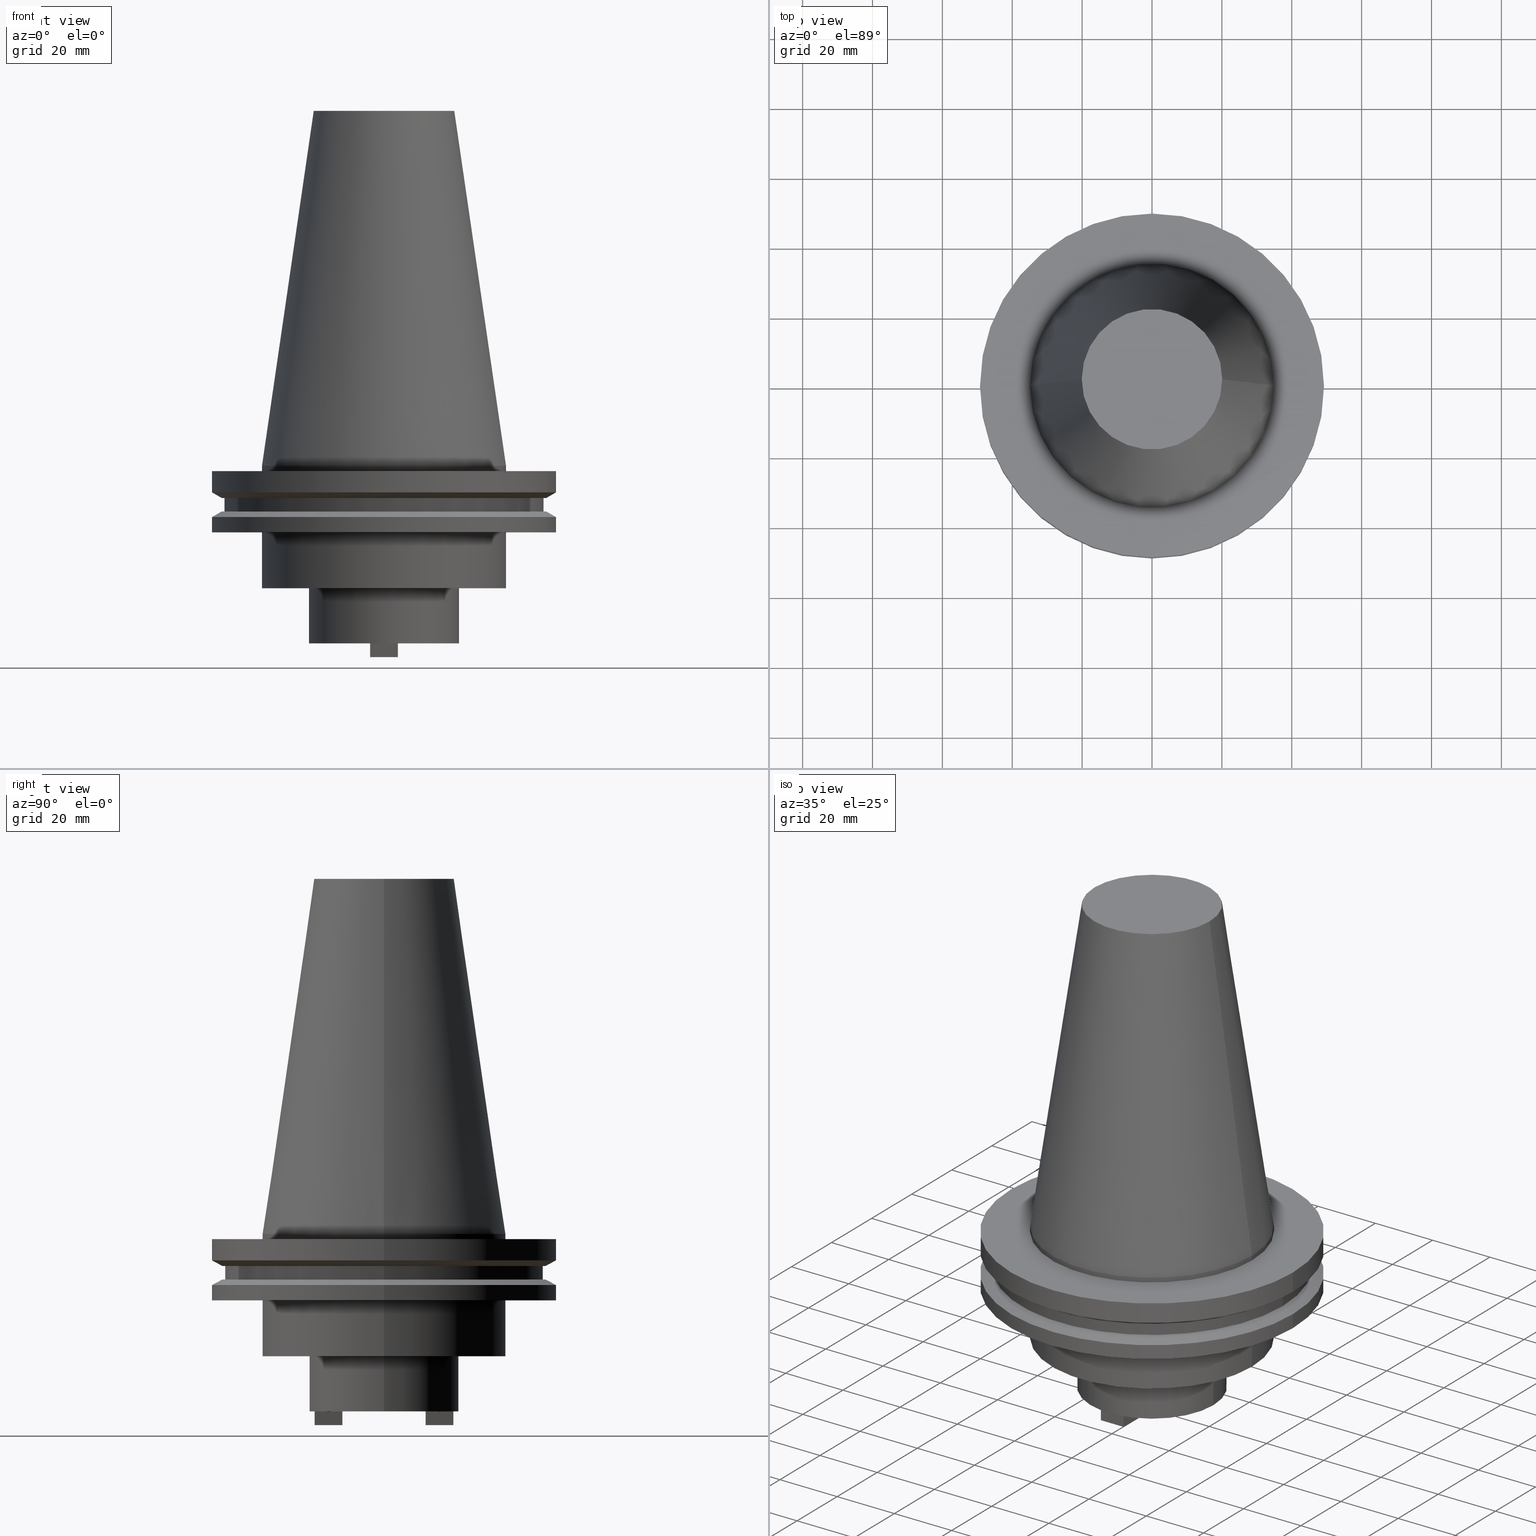
[diagram: canonical four-view strip — front | top / right | iso, engineering-drawing reading convention]
A machine part, canonical four-view strip (front | top / right | iso — engineering-drawing reading convention). The complete STEP part file that produces these views, byte-faithful:
ISO-10303-21;
HEADER;
FILE_DESCRIPTION (( 'STEP AP203' ),
    '1' );
FILE_NAME ('BCV50-SMC_750-2.stp',
    '2022-03-03T19:52:47',
    ( '' ),
    ( '' ),
    'SwSTEP 2.0',
    'SolidWorks 2021',
    '' );
FILE_SCHEMA (( 'CONFIG_CONTROL_DESIGN' ));
ENDSEC;

DATA;
#1 = PLANE ( 'NONE',  #751 ) ;
#2 = EDGE_LOOP ( 'NONE', ( #52, #470, #1011, #493 ) ) ;
#3 = CARTESIAN_POINT ( 'NONE',  ( 0.000000000000000000, 0.000000000000000000, -35.04999999999999716 ) ) ;
#4 = LINE ( 'NONE', #855, #114 ) ;
#5 = ORIENTED_EDGE ( 'NONE', *, *, #130, .T. ) ;
#6 = CC_DESIGN_PERSON_AND_ORGANIZATION_ASSIGNMENT ( #784, #282, ( #216 ) ) ;
#7 = DIRECTION ( 'NONE',  ( 1.000000000000000000, 0.000000000000000000, 0.000000000000000000 ) ) ;
#8 = ORIENTED_EDGE ( 'NONE', *, *, #749, .T. ) ;
#9 = DIRECTION ( 'NONE',  ( 0.000000000000000000, 0.000000000000000000, 1.000000000000000000 ) ) ;
#10 = CARTESIAN_POINT ( 'NONE',  ( 3.968749999999996447, 19.84374999999998579, -54.75999999999999801 ) ) ;
#11 = AXIS2_PLACEMENT_3D ( 'NONE', #217, #45, #883 ) ;
#12 = LINE ( 'NONE', #859, #275 ) ;
#13 = ORIENTED_EDGE ( 'NONE', *, *, #623, .F. ) ;
#14 = CARTESIAN_POINT ( 'NONE',  ( -4.214999999999961666, 5.161886258406057070E-16, -35.04999999999999716 ) ) ;
#15 = CARTESIAN_POINT ( 'NONE',  ( 0.000000000000000000, 0.000000000000000000, -14.65761014474876944 ) ) ;
#16 = DIRECTION ( 'NONE',  ( 1.000000000000000000, 0.000000000000000000, 0.000000000000000000 ) ) ;
#17 = VERTEX_POINT ( 'NONE', #814 ) ;
#18 = EDGE_CURVE ( 'NONE', #693, #943, #128, .T. ) ;
#19 = CARTESIAN_POINT ( 'NONE',  ( 21.45029999999999859, 0.000000000000000000, -50.79999999999999716 ) ) ;
#20 = FACE_OUTER_BOUND ( 'NONE', #423, .T. ) ;
#21 = ORIENTED_EDGE ( 'NONE', *, *, #385, .T. ) ;
#22 = APPROVAL_ROLE ( '' ) ;
#23 = CIRCLE ( 'NONE', #304, 49.21499999999998920 ) ;
#24 = DIRECTION ( 'NONE',  ( -0.000000000000000000, -0.000000000000000000, 1.000000000000000000 ) ) ;
#25 = EDGE_CURVE ( 'NONE', #978, #831, #680, .T. ) ;
#26 = CLOSED_SHELL ( 'NONE', ( #689, #629, #966, #899, #42, #618, #473, #779, #293, #758, #404, #221, #157, #803, #823, #440, #78, #608, #653, #36, #177, #424, #32, #502, #452, #188, #342, #112, #723, #541, #845, #872, #954, #958, #1061, #999, #192, #119 ) ) ;
#27 = AXIS2_PLACEMENT_3D ( 'NONE', #587, #503, #929 ) ;
#28 = AXIS2_PLACEMENT_3D ( 'NONE', #997, #73, #134 ) ;
#29 = ORIENTED_EDGE ( 'NONE', *, *, #858, .F. ) ;
#30 = PERSON_AND_ORGANIZATION_ROLE ( 'creator' ) ;
#31 = CARTESIAN_POINT ( 'NONE',  ( -3.968750000000007105, 19.84375000000000000, -50.79999999999999716 ) ) ;
#32 = ADVANCED_FACE ( 'NONE', ( #40 ), #638, .T. ) ;
#33 = ORIENTED_EDGE ( 'NONE', *, *, #260, .F. ) ;
#34 = APPROVAL_STATUS ( 'not_yet_approved' ) ;
#35 = DIRECTION ( 'NONE',  ( -0.000000000000000000, -0.000000000000000000, 1.000000000000000000 ) ) ;
#36 = ADVANCED_FACE ( 'NONE', ( #826 ), #1062, .T. ) ;
#37 = VERTEX_POINT ( 'NONE', #903 ) ;
#38 = DIRECTION ( 'NONE',  ( 1.000000000000000000, 0.000000000000000000, 0.000000000000000000 ) ) ;
#39 = CARTESIAN_POINT ( 'NONE',  ( 0.000000000000000000, 0.000000000000000000, -14.65761014474876944 ) ) ;
#40 = FACE_OUTER_BOUND ( 'NONE', #770, .T. ) ;
#41 = CIRCLE ( 'NONE', #100, 20.10819343178871321 ) ;
#42 = ADVANCED_FACE ( 'NONE', ( #716 ), #662, .T. ) ;
#43 = EDGE_LOOP ( 'NONE', ( #72, #387, #483, #189 ) ) ;
#44 = CARTESIAN_POINT ( 'NONE',  ( 0.000000000000000000, 0.000000000000000000, -50.79999999999999716 ) ) ;
#45 = DIRECTION ( 'NONE',  ( -0.000000000000000000, -0.000000000000000000, 1.000000000000000000 ) ) ;
#46 = CARTESIAN_POINT ( 'NONE',  ( 34.92499999999999716, 0.000000000000000000, 101.5999999999999943 ) ) ;
#47 = ORIENTED_EDGE ( 'NONE', *, *, #372, .T. ) ;
#48 = CARTESIAN_POINT ( 'NONE',  ( 49.21499999999999631, 0.000000000000000000, -1.499999999999987566 ) ) ;
#49 = EDGE_CURVE ( 'NONE', #17, #264, #218, .T. ) ;
#50 = FACE_BOUND ( 'NONE', #1019, .T. ) ;
#51 = DIRECTION ( 'NONE',  ( 1.000000000000000000, 0.000000000000000000, 0.000000000000000000 ) ) ;
#52 = ORIENTED_EDGE ( 'NONE', *, *, #419, .F. ) ;
#53 = DIRECTION ( 'NONE',  ( -0.000000000000000000, -0.000000000000000000, 1.000000000000000000 ) ) ;
#54 = EDGE_CURVE ( 'NONE', #436, #37, #556, .T. ) ;
#55 = CARTESIAN_POINT ( 'NONE',  ( 3.968749999999996447, 19.84374999999998579, -54.75999999999999801 ) ) ;
#56 = PLANE ( 'NONE',  #324 ) ;
#57 = APPLICATION_CONTEXT ( 'configuration controlled 3d designs of mechanical parts and assemblies' ) ;
#58 = CIRCLE ( 'NONE', #199, 34.92499999999999005 ) ;
#59 = ORIENTED_EDGE ( 'NONE', *, *, #1047, .F. ) ;
#60 = DIRECTION ( 'NONE',  ( -1.000000000000000000, 1.748382715945124910E-15, 0.000000000000000000 ) ) ;
#61 = PRODUCT_DEFINITION_SHAPE ( 'NONE', 'NONE',  #890 ) ;
#62 = VECTOR ( 'NONE', #560, 1000.000000000000000 ) ;
#63 = AXIS2_PLACEMENT_3D ( 'NONE', #828, #148, #1058 ) ;
#64 = DIRECTION ( 'NONE',  ( -0.000000000000000000, -0.000000000000000000, 1.000000000000000000 ) ) ;
#65 = EDGE_CURVE ( 'NONE', #759, #774, #371, .T. ) ;
#66 = CARTESIAN_POINT ( 'NONE',  ( -34.92499999999999716, 4.277078946022130887E-15, -19.04999999999999716 ) ) ;
#67 = ORIENTED_EDGE ( 'NONE', *, *, #1036, .F. ) ;
#68 = DIRECTION ( 'NONE',  ( -0.000000000000000000, -0.000000000000000000, 1.000000000000000000 ) ) ;
#69 = CARTESIAN_POINT ( 'NONE',  ( 21.45029999999999859, 0.000000000000000000, 0.000000000000000000 ) ) ;
#70 = CARTESIAN_POINT ( 'NONE',  ( 3.968750000000020872, -19.84375000000002132, -54.75999999999999801 ) ) ;
#71 = EDGE_CURVE ( 'NONE', #853, #460, #721, .T. ) ;
#72 = ORIENTED_EDGE ( 'NONE', *, *, #735, .F. ) ;
#73 = DIRECTION ( 'NONE',  ( -0.000000000000000000, -0.000000000000000000, 1.000000000000000000 ) ) ;
#74 = FACE_OUTER_BOUND ( 'NONE', #870, .T. ) ;
#75 = FACE_OUTER_BOUND ( 'NONE', #109, .T. ) ;
#76 = ORIENTED_EDGE ( 'NONE', *, *, #706, .F. ) ;
#77 = DIRECTION ( 'NONE',  ( -1.748382715945124910E-15, -1.000000000000000000, -0.000000000000000000 ) ) ;
#78 = ADVANCED_FACE ( 'NONE', ( #898 ), #225, .T. ) ;
#79 = AXIS2_PLACEMENT_3D ( 'NONE', #70, #1072, #91 ) ;
#80 = DIRECTION ( 'NONE',  ( -1.000000000000000000, 0.000000000000000000, 0.000000000000000000 ) ) ;
#81 = CIRCLE ( 'NONE', #410, 45.64500000000000313 ) ;
#82 = ADVANCED_BREP_SHAPE_REPRESENTATION ( 'BCV50-SMC_750-2', ( #702, #568 ), #626 ) ;
#83 = VECTOR ( 'NONE', #1049, 1000.000000000000000 ) ;
#84 = ORIENTED_EDGE ( 'NONE', *, *, #617, .F. ) ;
#85 = DIRECTION ( 'NONE',  ( -0.000000000000000000, -0.000000000000000000, 1.000000000000000000 ) ) ;
#86 = ORIENTED_EDGE ( 'NONE', *, *, #521, .F. ) ;
#87 = FACE_OUTER_BOUND ( 'NONE', #302, .T. ) ;
#88 = DIRECTION ( 'NONE',  ( -1.000000000000000000, 0.000000000000000000, -0.000000000000000000 ) ) ;
#89 = CC_DESIGN_DATE_AND_TIME_ASSIGNMENT ( #278, #272, ( #890 ) ) ;
#90 = EDGE_LOOP ( 'NONE', ( #105, #815, #158, #411 ) ) ;
#91 = DIRECTION ( 'NONE',  ( -1.000000000000000000, 8.741913579725607786E-16, 0.000000000000000000 ) ) ;
#92 = ORIENTED_EDGE ( 'NONE', *, *, #1018, .T. ) ;
#93 = DIRECTION ( 'NONE',  ( 7.649174382259954761E-16, 1.000000000000000000, 0.000000000000000000 ) ) ;
#94 = EDGE_LOOP ( 'NONE', ( #671, #227, #453, #29 ) ) ;
#95 = CYLINDRICAL_SURFACE ( 'NONE', #698, 34.92499999999999716 ) ;
#96 = PERSON ( 'UNSPECIFIED', 'UNSPECIFIED', 'UNSPECIFIED', ('UNSPECIFIED'), ('UNSPECIFIED'), ('UNSPECIFIED') ) ;
#97 = ORIENTED_EDGE ( 'NONE', *, *, #548, .F. ) ;
#98 = FACE_OUTER_BOUND ( 'NONE', #1079, .T. ) ;
#99 = EDGE_LOOP ( 'NONE', ( #351, #707, #511, #674 ) ) ;
#100 = AXIS2_PLACEMENT_3D ( 'NONE', #887, #437, #710 ) ;
#101 = CARTESIAN_POINT ( 'NONE',  ( 3.968749999999996447, 19.84374999999998579, -54.75999999999999801 ) ) ;
#102 = EDGE_CURVE ( 'NONE', #703, #594, #458, .T. ) ;
#103 = EDGE_LOOP ( 'NONE', ( #639, #13, #909, #1006 ) ) ;
#104 = DIRECTION ( 'NONE',  ( -0.000000000000000000, -0.000000000000000000, 1.000000000000000000 ) ) ;
#105 = ORIENTED_EDGE ( 'NONE', *, *, #1030, .T. ) ;
#106 = LINE ( 'NONE', #515, #791 ) ;
#107 = ORIENTED_EDGE ( 'NONE', *, *, #725, .F. ) ;
#108 = DIRECTION ( 'NONE',  ( 1.000000000000000000, 0.000000000000000000, 0.000000000000000000 ) ) ;
#109 = EDGE_LOOP ( 'NONE', ( #268, #717, #295, #539 ) ) ;
#110 = APPROVAL_ROLE ( '' ) ;
#111 = CARTESIAN_POINT ( 'NONE',  ( -49.21499999999998920, 6.027099222003697037E-15, -14.65761014474876944 ) ) ;
#112 = ADVANCED_FACE ( 'NONE', ( #727 ), #648, .F. ) ;
#113 = AXIS2_PLACEMENT_3D ( 'NONE', #235, #919, #318 ) ;
#114 = VECTOR ( 'NONE', #597, 1000.000000000000000 ) ;
#115 = VECTOR ( 'NONE', #273, 1000.000000000000000 ) ;
#116 = ORIENTED_EDGE ( 'NONE', *, *, #1010, .F. ) ;
#117 = PERSON_AND_ORGANIZATION ( #96, #340 ) ;
#118 = CARTESIAN_POINT ( 'NONE',  ( 3.968750000000034639, -11.90625000000000533, -54.75999999999999801 ) ) ;
#119 = ADVANCED_FACE ( 'NONE', ( #990 ), #56, .F. ) ;
#120 = ORIENTED_EDGE ( 'NONE', *, *, #557, .T. ) ;
#121 = CARTESIAN_POINT ( 'NONE',  ( -46.43919780457007818, 5.687161494633754392E-15, -9.204999999999991189 ) ) ;
#122 = CARTESIAN_POINT ( 'NONE',  ( -34.92499999999999716, 4.277078946022130887E-15, 101.5999999999999943 ) ) ;
#123 = DIRECTION ( 'NONE',  ( 1.000000000000000000, 0.000000000000000000, 0.000000000000000000 ) ) ;
#124 = ORIENTED_EDGE ( 'NONE', *, *, #486, .F. ) ;
#125 = CARTESIAN_POINT ( 'NONE',  ( 0.000000000000000000, 0.000000000000000000, -50.79999999999999716 ) ) ;
#126 = CIRCLE ( 'NONE', #286, 45.64500000000000313 ) ;
#127 = CYLINDRICAL_SURFACE ( 'NONE', #714, 4.214999999999977653 ) ;
#128 = CIRCLE ( 'NONE', #591, 34.92499999999999005 ) ;
#129 = CARTESIAN_POINT ( 'NONE',  ( 0.000000000000000000, 0.000000000000000000, -9.204999999999991189 ) ) ;
#130 = EDGE_CURVE ( 'NONE', #1014, #191, #571, .T. ) ;
#131 = AXIS2_PLACEMENT_3D ( 'NONE', #1078, #938, #994 ) ;
#132 = AXIS2_PLACEMENT_3D ( 'NONE', #1067, #989, #398 ) ;
#133 = EDGE_LOOP ( 'NONE', ( #247, #319, #296, #365 ) ) ;
#134 = DIRECTION ( 'NONE',  ( 1.000000000000000000, 0.000000000000000000, 0.000000000000000000 ) ) ;
#135 = CARTESIAN_POINT ( 'NONE',  ( -34.92499999999999005, 0.000000000000000000, 0.000000000000000000 ) ) ;
#136 = CARTESIAN_POINT ( 'NONE',  ( -3.968750000000009770, -19.84375000000001421, -50.79999999999999716 ) ) ;
#137 = ORIENTED_EDGE ( 'NONE', *, *, #377, .F. ) ;
#138 = CARTESIAN_POINT ( 'NONE',  ( 0.000000000000000000, 0.000000000000000000, 101.5999999999999943 ) ) ;
#139 = LINE ( 'NONE', #474, #616 ) ;
#140 = DIRECTION ( 'NONE',  ( -0.000000000000000000, -0.000000000000000000, 1.000000000000000000 ) ) ;
#141 = ORIENTED_EDGE ( 'NONE', *, *, #935, .T. ) ;
#142 = DIRECTION ( 'NONE',  ( 1.000000000000000000, 0.000000000000000000, 0.000000000000000000 ) ) ;
#143 = LINE ( 'NONE', #224, #62 ) ;
#144 = EDGE_CURVE ( 'NONE', #827, #414, #752, .T. ) ;
#145 = APPROVAL_PERSON_ORGANIZATION ( #796, #350, #434 ) ;
#146 = ORIENTED_EDGE ( 'NONE', *, *, #935, .F. ) ;
#147 = VERTEX_POINT ( 'NONE', #760 ) ;
#148 = DIRECTION ( 'NONE',  ( -0.000000000000000000, -0.000000000000000000, 1.000000000000000000 ) ) ;
#149 = AXIS2_PLACEMENT_3D ( 'NONE', #263, #865, #604 ) ;
#150 = DIRECTION ( 'NONE',  ( 0.000000000000000000, 0.000000000000000000, -1.000000000000000000 ) ) ;
#151 = EDGE_CURVE ( 'NONE', #937, #259, #572, .T. ) ;
#152 = DIRECTION ( 'NONE',  ( -1.000000000000000000, 0.000000000000000000, -0.000000000000000000 ) ) ;
#153 = EDGE_LOOP ( 'NONE', ( #331, #47 ) ) ;
#154 = DIRECTION ( 'NONE',  ( -0.000000000000000000, -0.000000000000000000, 1.000000000000000000 ) ) ;
#155 = LINE ( 'NONE', #407, #200 ) ;
#156 = LINE ( 'NONE', #590, #1015 ) ;
#157 = ADVANCED_FACE ( 'NONE', ( #914 ), #1, .F. ) ;
#158 = ORIENTED_EDGE ( 'NONE', *, *, #226, .F. ) ;
#159 = CARTESIAN_POINT ( 'NONE',  ( 49.21499999999998920, 6.027099222003697037E-15, -14.65761014474876944 ) ) ;
#160 = DIRECTION ( 'NONE',  ( 1.000000000000000000, 0.000000000000000000, 0.000000000000000000 ) ) ;
#161 = EDGE_LOOP ( 'NONE', ( #1051, #506, #222, #866 ) ) ;
#162 = CARTESIAN_POINT ( 'NONE',  ( -21.45029999999999859, 2.626904123575046818E-15, -50.79999999999999716 ) ) ;
#163 = EDGE_CURVE ( 'NONE', #532, #600, #614, .T. ) ;
#164 = ORIENTED_EDGE ( 'NONE', *, *, #584, .T. ) ;
#165 = LINE ( 'NONE', #500, #1077 ) ;
#166 = CARTESIAN_POINT ( 'NONE',  ( 0.000000000000000000, 0.000000000000000000, -14.65761014474876944 ) ) ;
#167 = VECTOR ( 'NONE', #380, 1000.000000000000000 ) ;
#168 = AXIS2_PLACEMENT_3D ( 'NONE', #545, #24, #190 ) ;
#169 = EDGE_LOOP ( 'NONE', ( #284, #582, #334, #86 ) ) ;
#170 = CARTESIAN_POINT ( 'NONE',  ( 3.968750000000020872, -19.84375000000002132, -54.75999999999999801 ) ) ;
#171 = ORIENTED_EDGE ( 'NONE', *, *, #977, .F. ) ;
#172 = FACE_OUTER_BOUND ( 'NONE', #360, .T. ) ;
#173 = VERTEX_POINT ( 'NONE', #66 ) ;
#174 = DIRECTION ( 'NONE',  ( 0.000000000000000000, 0.000000000000000000, -1.000000000000000000 ) ) ;
#175 = ORIENTED_EDGE ( 'NONE', *, *, #818, .T. ) ;
#176 = DIRECTION ( 'NONE',  ( -0.000000000000000000, -0.000000000000000000, 1.000000000000000000 ) ) ;
#177 = ADVANCED_FACE ( 'NONE', ( #240, #847 ), #487, .F. ) ;
#178 = CARTESIAN_POINT ( 'NONE',  ( 0.000000000000000000, 0.000000000000000000, -13.05499999999999794 ) ) ;
#179 = AXIS2_PLACEMENT_3D ( 'NONE', #644, #68, #142 ) ;
#180 = ORIENTED_EDGE ( 'NONE', *, *, #719, .T. ) ;
#181 = DIRECTION ( 'NONE',  ( 0.1443082272672999988, 1.767266086135277066E-17, -0.9895327864921755756 ) ) ;
#182 = DIRECTION ( 'NONE',  ( -0.000000000000000000, -0.000000000000000000, 1.000000000000000000 ) ) ;
#183 = ORIENTED_EDGE ( 'NONE', *, *, #1010, .T. ) ;
#184 = AXIS2_PLACEMENT_3D ( 'NONE', #663, #599, #252 ) ;
#185 = EDGE_CURVE ( 'NONE', #795, #831, #156, .T. ) ;
#186 = VECTOR ( 'NONE', #715, 1000.000000000000000 ) ;
#187 = CARTESIAN_POINT ( 'NONE',  ( 20.10819343178871321, 3.369811209154858606E-15, 101.5999999999999801 ) ) ;
#188 = ADVANCED_FACE ( 'NONE', ( #1084 ), #505, .T. ) ;
#189 = ORIENTED_EDGE ( 'NONE', *, *, #211, .F. ) ;
#190 = DIRECTION ( 'NONE',  ( 1.000000000000000000, 0.000000000000000000, 0.000000000000000000 ) ) ;
#191 = VERTEX_POINT ( 'NONE', #1009 ) ;
#192 = ADVANCED_FACE ( 'NONE', ( #258 ), #830, .F. ) ;
#193 = PERSON_AND_ORGANIZATION ( #96, #340 ) ;
#194 = CARTESIAN_POINT ( 'NONE',  ( 3.968750000000020872, -19.84375000000002132, -50.79999999999999716 ) ) ;
#195 = ORIENTED_EDGE ( 'NONE', *, *, #457, .F. ) ;
#196 = COORDINATED_UNIVERSAL_TIME_OFFSET ( 6, 0, .BEHIND. ) ;
#197 = EDGE_CURVE ( 'NONE', #191, #1014, #979, .T. ) ;
#198 = DIRECTION ( 'NONE',  ( 0.000000000000000000, -0.000000000000000000, 1.000000000000000000 ) ) ;
#199 = AXIS2_PLACEMENT_3D ( 'NONE', #578, #1001, #491 ) ;
#200 = VECTOR ( 'NONE', #750, 1000.000000000000000 ) ;
#201 = AXIS2_PLACEMENT_3D ( 'NONE', #540, #615, #38 ) ;
#202 = ORIENTED_EDGE ( 'NONE', *, *, #260, .T. ) ;
#203 = SECURITY_CLASSIFICATION_LEVEL ( 'unclassified' ) ;
#204 = CARTESIAN_POINT ( 'NONE',  ( -34.92499999999999005, 4.277078946022130098E-15, 101.5999999999999943 ) ) ;
#205 = DIRECTION ( 'NONE',  ( 1.000000000000000000, 0.000000000000000000, 0.000000000000000000 ) ) ;
#206 = DIRECTION ( 'NONE',  ( -0.000000000000000000, -0.000000000000000000, 1.000000000000000000 ) ) ;
#207 = APPROVAL_DATE_TIME ( #450, #660 ) ;
#208 = ORIENTED_EDGE ( 'NONE', *, *, #1073, .T. ) ;
#209 = PLANE ( 'NONE',  #555 ) ;
#210 = CARTESIAN_POINT ( 'NONE',  ( 46.43919780457007818, 5.857130358318725715E-15, -13.05499999999999794 ) ) ;
#211 = EDGE_CURVE ( 'NONE', #499, #1037, #58, .T. ) ;
#212 = DIRECTION ( 'NONE',  ( -0.000000000000000000, -0.000000000000000000, 1.000000000000000000 ) ) ;
#213 = VERTEX_POINT ( 'NONE', #834 ) ;
#214 = FACE_OUTER_BOUND ( 'NONE', #980, .T. ) ;
#215 = AXIS2_PLACEMENT_3D ( 'NONE', #659, #894, #832 ) ;
#216 = PRODUCT_DEFINITION_FORMATION_WITH_SPECIFIED_SOURCE ( 'ANY', '', #246, .NOT_KNOWN. ) ;
#217 = CARTESIAN_POINT ( 'NONE',  ( 0.000000000000000000, 0.000000000000000000, -35.04999999999999716 ) ) ;
#218 = CIRCLE ( 'NONE', #631, 20.10819343178871321 ) ;
#219 = DIRECTION ( 'NONE',  ( 1.000000000000000000, 0.000000000000000000, 0.000000000000000000 ) ) ;
#220 = AXIS2_PLACEMENT_3D ( 'NONE', #833, #993, #234 ) ;
#221 = ADVANCED_FACE ( 'NONE', ( #75 ), #860, .T. ) ;
#222 = ORIENTED_EDGE ( 'NONE', *, *, #233, .F. ) ;
#223 = FACE_OUTER_BOUND ( 'NONE', #761, .T. ) ;
#224 = CARTESIAN_POINT ( 'NONE',  ( 3.968750000000017319, 11.90624999999999289, -54.75999999999999801 ) ) ;
#225 = CYLINDRICAL_SURFACE ( 'NONE', #392, 49.21499999999998920 ) ;
#226 = EDGE_CURVE ( 'NONE', #774, #173, #236, .T. ) ;
#227 = ORIENTED_EDGE ( 'NONE', *, *, #185, .T. ) ;
#228 = CARTESIAN_POINT ( 'NONE',  ( 0.000000000000000000, 0.000000000000000000, -9.204999999999991189 ) ) ;
#229 = LINE ( 'NONE', #390, #290 ) ;
#230 = DIRECTION ( 'NONE',  ( 0.000000000000000000, 0.000000000000000000, 1.000000000000000000 ) ) ;
#231 = ORIENTED_EDGE ( 'NONE', *, *, #927, .T. ) ;
#232 = FACE_OUTER_BOUND ( 'NONE', #677, .T. ) ;
#233 = EDGE_CURVE ( 'NONE', #777, #795, #479, .T. ) ;
#234 = DIRECTION ( 'NONE',  ( 1.000000000000000000, 0.000000000000000000, 0.000000000000000000 ) ) ;
#235 = CARTESIAN_POINT ( 'NONE',  ( 0.000000000000000000, 0.000000000000000000, -19.04999999999999716 ) ) ;
#236 = CIRCLE ( 'NONE', #963, 34.92499999999999716 ) ;
#237 = ORIENTED_EDGE ( 'NONE', *, *, #970, .T. ) ;
#238 = DIRECTION ( 'NONE',  ( 1.000000000000000000, 0.000000000000000000, 0.000000000000000000 ) ) ;
#239 = LINE ( 'NONE', #317, #824 ) ;
#240 = FACE_OUTER_BOUND ( 'NONE', #609, .T. ) ;
#241 = ORIENTED_EDGE ( 'NONE', *, *, #858, .T. ) ;
#242 = CARTESIAN_POINT ( 'NONE',  ( 4.214999999999961666, 0.000000000000000000, -35.04999999999999716 ) ) ;
#243 = CARTESIAN_POINT ( 'NONE',  ( 0.000000000000000000, 0.000000000000000000, -1.499999999999987566 ) ) ;
#244 = EDGE_CURVE ( 'NONE', #416, #875, #670, .T. ) ;
#245 = DIRECTION ( 'NONE',  ( -0.000000000000000000, -0.000000000000000000, 1.000000000000000000 ) ) ;
#246 = PRODUCT ( 'BCV50-SMC_750-2', 'BCV50-SMC_750-2', '', ( #601 ) ) ;
#247 = ORIENTED_EDGE ( 'NONE', *, *, #102, .F. ) ;
#248 =( NAMED_UNIT ( * ) PLANE_ANGLE_UNIT ( ) SI_UNIT ( $, .RADIAN. ) );
#249 = LINE ( 'NONE', #10, #538 ) ;
#250 = ORIENTED_EDGE ( 'NONE', *, *, #535, .F. ) ;
#251 = AXIS2_PLACEMENT_3D ( 'NONE', #586, #666, #1080 ) ;
#252 = DIRECTION ( 'NONE',  ( 1.000000000000000000, 0.000000000000000000, 0.000000000000000000 ) ) ;
#253 = VERTEX_POINT ( 'NONE', #162 ) ;
#254 = AXIS2_PLACEMENT_3D ( 'NONE', #802, #1056, #301 ) ;
#255 = FACE_OUTER_BOUND ( 'NONE', #603, .T. ) ;
#256 = CIRCLE ( 'NONE', #878, 49.21500000000000341 ) ;
#257 = CONICAL_SURFACE ( 'NONE', #647, 34.92499999999999005, 0.1448138465474119452 ) ;
#258 = FACE_OUTER_BOUND ( 'NONE', #987, .T. ) ;
#259 = VERTEX_POINT ( 'NONE', #497 ) ;
#260 = EDGE_CURVE ( 'NONE', #1057, #1069, #806, .T. ) ;
#261 = CYLINDRICAL_SURFACE ( 'NONE', #593, 4.214999999999977653 ) ;
#262 = ORIENTED_EDGE ( 'NONE', *, *, #1047, .T. ) ;
#263 = CARTESIAN_POINT ( 'NONE',  ( 0.000000000000000000, 0.000000000000000000, -13.05499999999999794 ) ) ;
#264 = VERTEX_POINT ( 'NONE', #187 ) ;
#265 = DIRECTION ( 'NONE',  ( 1.000000000000000000, 0.000000000000000000, 0.000000000000000000 ) ) ;
#266 = CARTESIAN_POINT ( 'NONE',  ( 3.968750000000020872, -19.84375000000002132, -54.75999999999999801 ) ) ;
#267 = EDGE_CURVE ( 'NONE', #471, #173, #289, .T. ) ;
#268 = ORIENTED_EDGE ( 'NONE', *, *, #1055, .F. ) ;
#269 = CARTESIAN_POINT ( 'NONE',  ( -3.968750000000009770, -19.84375000000001421, -54.75999999999999801 ) ) ;
#270 = CIRCLE ( 'NONE', #215, 46.43919780457007818 ) ;
#271 = EDGE_LOOP ( 'NONE', ( #544, #231, #208, #308 ) ) ;
#272 = DATE_TIME_ROLE ( 'creation_date' ) ;
#273 = DIRECTION ( 'NONE',  ( -0.8660254037844273833, 1.060575238724893110E-16, 0.5000000000000195399 ) ) ;
#274 = AXIS2_PLACEMENT_3D ( 'NONE', #166, #357, #80 ) ;
#275 = VECTOR ( 'NONE', #778, 1000.000000000000114 ) ;
#276 = EDGE_CURVE ( 'NONE', #213, #811, #464, .T. ) ;
#277 = ORIENTED_EDGE ( 'NONE', *, *, #71, .F. ) ;
#278 = DATE_AND_TIME ( #366, #389 ) ;
#279 = LINE ( 'NONE', #121, #115 ) ;
#280 = EDGE_CURVE ( 'NONE', #1064, #1027, #81, .T. ) ;
#281 = VERTEX_POINT ( 'NONE', #547 ) ;
#282 = PERSON_AND_ORGANIZATION_ROLE ( 'design_supplier' ) ;
#283 = CARTESIAN_POINT ( 'NONE',  ( 0.000000000000000000, 0.000000000000000000, -19.04999999999999716 ) ) ;
#284 = ORIENTED_EDGE ( 'NONE', *, *, #977, .T. ) ;
#285 = COORDINATED_UNIVERSAL_TIME_OFFSET ( 6, 0, .BEHIND. ) ;
#286 = AXIS2_PLACEMENT_3D ( 'NONE', #228, #812, #640 ) ;
#287 = APPROVAL_PERSON_ORGANIZATION ( #620, #906, #110 ) ;
#288 = LINE ( 'NONE', #204, #880 ) ;
#289 = LINE ( 'NONE', #122, #463 ) ;
#290 = VECTOR ( 'NONE', #64, 1000.000000000000000 ) ;
#291 = DIRECTION ( 'NONE',  ( 1.000000000000000000, 0.000000000000000000, 0.000000000000000000 ) ) ;
#292 = FACE_OUTER_BOUND ( 'NONE', #99, .T. ) ;
#293 = ADVANCED_FACE ( 'NONE', ( #1050 ), #95, .T. ) ;
#294 = LINE ( 'NONE', #101, #913 ) ;
#295 = ORIENTED_EDGE ( 'NONE', *, *, #466, .T. ) ;
#296 = ORIENTED_EDGE ( 'NONE', *, *, #1088, .F. ) ;
#297 = CARTESIAN_POINT ( 'NONE',  ( 34.92499999999999005, 0.000000000000000000, -1.499999999999987566 ) ) ;
#298 = CC_DESIGN_DATE_AND_TIME_ASSIGNMENT ( #868, #1038, ( #976 ) ) ;
#299 = CARTESIAN_POINT ( 'NONE',  ( 0.000000000000000000, 0.000000000000000000, -9.204999999999991189 ) ) ;
#300 = EDGE_CURVE ( 'NONE', #1027, #1064, #554, .T. ) ;
#301 = DIRECTION ( 'NONE',  ( 1.000000000000000000, 0.000000000000000000, 0.000000000000000000 ) ) ;
#302 = EDGE_LOOP ( 'NONE', ( #21, #277, #67, #566 ) ) ;
#303 = DIRECTION ( 'NONE',  ( 0.000000000000000000, 0.000000000000000000, -1.000000000000000000 ) ) ;
#304 = AXIS2_PLACEMENT_3D ( 'NONE', #718, #981, #238 ) ;
#305 = LINE ( 'NONE', #645, #573 ) ;
#306 = EDGE_CURVE ( 'NONE', #820, #920, #520, .T. ) ;
#307 = AXIS2_PLACEMENT_3D ( 'NONE', #129, #140, #291 ) ;
#308 = ORIENTED_EDGE ( 'NONE', *, *, #719, .F. ) ;
#309 = VECTOR ( 'NONE', #922, 1000.000000000000000 ) ;
#310 = AXIS2_PLACEMENT_3D ( 'NONE', #283, #1042, #799 ) ;
#311 = ORIENTED_EDGE ( 'NONE', *, *, #377, .T. ) ;
#312 = CYLINDRICAL_SURFACE ( 'NONE', #1017, 49.21499999999999631 ) ;
#313 = CARTESIAN_POINT ( 'NONE',  ( -3.968750000000007105, 19.84375000000000000, -50.79999999999999716 ) ) ;
#314 = DIRECTION ( 'NONE',  ( 0.000000000000000000, -0.000000000000000000, 1.000000000000000000 ) ) ;
#315 = ORIENTED_EDGE ( 'NONE', *, *, #528, .F. ) ;
#316 = CARTESIAN_POINT ( 'NONE',  ( -3.968750000000012879, 11.90625000000001776, -54.75999999999999801 ) ) ;
#317 = CARTESIAN_POINT ( 'NONE',  ( 34.92499999999999005, 0.000000000000000000, 101.5999999999999943 ) ) ;
#318 = DIRECTION ( 'NONE',  ( 1.000000000000000000, 0.000000000000000000, 0.000000000000000000 ) ) ;
#319 = ORIENTED_EDGE ( 'NONE', *, *, #810, .F. ) ;
#320 = CYLINDRICAL_SURFACE ( 'NONE', #888, 34.92499999999999005 ) ;
#321 = CARTESIAN_POINT ( 'NONE',  ( -45.64500000000000313, 5.589900314708094957E-15, -9.204999999999991189 ) ) ;
#322 = LOCAL_TIME ( 13, 52, 47.00000000000000000, #196 ) ;
#323 = CARTESIAN_POINT ( 'NONE',  ( 0.000000000000000000, 20.10819343178871321, 101.5999999999999943 ) ) ;
#324 = AXIS2_PLACEMENT_3D ( 'NONE', #393, #230, #565 ) ;
#325 = ORIENTED_EDGE ( 'NONE', *, *, #584, .F. ) ;
#326 = LINE ( 'NONE', #352, #748 ) ;
#327 = CONICAL_SURFACE ( 'NONE', #375, 46.43919780457007818, 1.047197551196575205 ) ;
#328 = DIRECTION ( 'NONE',  ( -0.000000000000000000, -0.000000000000000000, 1.000000000000000000 ) ) ;
#329 = EDGE_CURVE ( 'NONE', #471, #759, #664, .T. ) ;
#330 = DIRECTION ( 'NONE',  ( -1.000000000000000000, 0.000000000000000000, 0.000000000000000000 ) ) ;
#331 = ORIENTED_EDGE ( 'NONE', *, *, #49, .T. ) ;
#332 = DIRECTION ( 'NONE',  ( 1.000000000000000000, 0.000000000000000000, 0.000000000000000000 ) ) ;
#333 = FACE_BOUND ( 'NONE', #405, .T. ) ;
#334 = ORIENTED_EDGE ( 'NONE', *, *, #276, .F. ) ;
#335 = EDGE_CURVE ( 'NONE', #281, #348, #294, .T. ) ;
#336 = CARTESIAN_POINT ( 'NONE',  ( 0.000000000000000000, 0.000000000000000000, -35.04999999999999716 ) ) ;
#337 = VERTEX_POINT ( 'NONE', #210 ) ;
#338 = CARTESIAN_POINT ( 'NONE',  ( 3.968750000000020872, -19.84375000000002132, -50.79999999999999716 ) ) ;
#339 = LINE ( 'NONE', #678, #430 ) ;
#340 = ORGANIZATION ( 'UNSPECIFIED', 'UNSPECIFIED', '' ) ;
#341 = CARTESIAN_POINT ( 'NONE',  ( 0.000000000000000000, 0.000000000000000000, -7.602389855251287187 ) ) ;
#342 = ADVANCED_FACE ( 'NONE', ( #949 ), #127, .F. ) ;
#343 = ORIENTED_EDGE ( 'NONE', *, *, #1030, .F. ) ;
#344 =( LENGTH_UNIT ( ) NAMED_UNIT ( * ) SI_UNIT ( .MILLI., .METRE. ) );
#345 = AXIS2_PLACEMENT_3D ( 'NONE', #583, #420, #330 ) ;
#346 = FACE_OUTER_BOUND ( 'NONE', #900, .T. ) ;
#347 = CIRCLE ( 'NONE', #596, 34.92499999999999005 ) ;
#348 = VERTEX_POINT ( 'NONE', #611 ) ;
#349 = CARTESIAN_POINT ( 'NONE',  ( 3.968750000000034639, -11.90625000000000533, -50.79999999999999716 ) ) ;
#350 = APPROVAL ( #34, 'UNSPECIFIED' ) ;
#351 = ORIENTED_EDGE ( 'NONE', *, *, #372, .F. ) ;
#352 = CARTESIAN_POINT ( 'NONE',  ( 3.968749999999996447, 19.84374999999998579, -54.75999999999999801 ) ) ;
#353 = DIRECTION ( 'NONE',  ( -0.000000000000000000, -0.000000000000000000, 1.000000000000000000 ) ) ;
#354 = LINE ( 'NONE', #692, #167 ) ;
#355 = ORIENTED_EDGE ( 'NONE', *, *, #818, .F. ) ;
#356 = DATE_AND_TIME ( #628, #459 ) ;
#357 = DIRECTION ( 'NONE',  ( 0.000000000000000000, 0.000000000000000000, -1.000000000000000000 ) ) ;
#358 = LINE ( 'NONE', #349, #773 ) ;
#359 = AXIS2_PLACEMENT_3D ( 'NONE', #843, #837, #1012 ) ;
#360 = EDGE_LOOP ( 'NONE', ( #848, #687, #84, #634 ) ) ;
#361 = CARTESIAN_POINT ( 'NONE',  ( 49.21500000000000341, 0.000000000000000000, -7.602389855251287187 ) ) ;
#362 = VECTOR ( 'NONE', #475, 1000.000000000000000 ) ;
#363 = EDGE_CURVE ( 'NONE', #1014, #1057, #106, .T. ) ;
#364 = CIRCLE ( 'NONE', #132, 4.214999999999961666 ) ;
#365 = ORIENTED_EDGE ( 'NONE', *, *, #385, .F. ) ;
#366 = CALENDAR_DATE ( 2022, 3, 3 ) ;
#367 = CARTESIAN_POINT ( 'NONE',  ( 34.92499999999999716, 0.000000000000000000, -19.04999999999999716 ) ) ;
#368 = ORIENTED_EDGE ( 'NONE', *, *, #570, .F. ) ;
#369 = APPROVAL_DATE_TIME ( #356, #350 ) ;
#370 = DIRECTION ( 'NONE',  ( -0.000000000000000000, -0.000000000000000000, 1.000000000000000000 ) ) ;
#371 = LINE ( 'NONE', #46, #876 ) ;
#372 = EDGE_CURVE ( 'NONE', #264, #17, #41, .T. ) ;
#373 = FACE_BOUND ( 'NONE', #476, .T. ) ;
#374 = DIRECTION ( 'NONE',  ( -0.000000000000000000, -0.000000000000000000, 1.000000000000000000 ) ) ;
#375 = AXIS2_PLACEMENT_3D ( 'NONE', #299, #1026, #469 ) ;
#376 = CARTESIAN_POINT ( 'NONE',  ( 0.000000000000000000, 0.000000000000000000, 101.5999999999999801 ) ) ;
#377 = EDGE_CURVE ( 'NONE', #643, #811, #12, .T. ) ;
#378 = ORIENTED_EDGE ( 'NONE', *, *, #130, .F. ) ;
#379 = LINE ( 'NONE', #31, #841 ) ;
#380 = DIRECTION ( 'NONE',  ( -0.000000000000000000, -0.000000000000000000, 1.000000000000000000 ) ) ;
#381 = DIRECTION ( 'NONE',  ( -0.000000000000000000, -0.000000000000000000, 1.000000000000000000 ) ) ;
#382 = ORIENTED_EDGE ( 'NONE', *, *, #867, .T. ) ;
#383 = FACE_OUTER_BOUND ( 'NONE', #842, .T. ) ;
#384 = DIRECTION ( 'NONE',  ( -1.000000000000000000, 0.000000000000000000, -0.000000000000000000 ) ) ;
#385 = EDGE_CURVE ( 'NONE', #594, #460, #358, .T. ) ;
#386 = DIRECTION ( 'NONE',  ( -1.092739197465703315E-16, 1.000000000000000000, 0.000000000000000000 ) ) ;
#387 = ORIENTED_EDGE ( 'NONE', *, *, #18, .T. ) ;
#388 = CARTESIAN_POINT ( 'NONE',  ( 3.968750000000020872, -19.84375000000002132, -54.75999999999999801 ) ) ;
#389 = LOCAL_TIME ( 13, 52, 47.00000000000000000, #956 ) ;
#390 = CARTESIAN_POINT ( 'NONE',  ( -3.968750000000012879, 11.90625000000001776, -54.75999999999999801 ) ) ;
#391 = CC_DESIGN_PERSON_AND_ORGANIZATION_ASSIGNMENT ( #193, #527, ( #976 ) ) ;
#392 = AXIS2_PLACEMENT_3D ( 'NONE', #543, #884, #123 ) ;
#393 = CARTESIAN_POINT ( 'NONE',  ( 0.000000000000000000, 0.000000000000000000, -54.75999999999999801 ) ) ;
#394 = CIRCLE ( 'NONE', #447, 49.21499999999998920 ) ;
#395 = AXIS2_PLACEMENT_3D ( 'NONE', #125, #529, #455 ) ;
#396 = ORIENTED_EDGE ( 'NONE', *, *, #725, .T. ) ;
#397 = DIRECTION ( 'NONE',  ( -1.748382715945124910E-15, -1.000000000000000000, 0.000000000000000000 ) ) ;
#398 = DIRECTION ( 'NONE',  ( 1.000000000000000000, 0.000000000000000000, 0.000000000000000000 ) ) ;
#399 = DIRECTION ( 'NONE',  ( -0.000000000000000000, -0.000000000000000000, 1.000000000000000000 ) ) ;
#400 = EDGE_LOOP ( 'NONE', ( #654, #658, #1089, #665 ) ) ;
#401 = CARTESIAN_POINT ( 'NONE',  ( 0.000000000000000000, 0.000000000000000000, -54.75999999999999801 ) ) ;
#402 = CARTESIAN_POINT ( 'NONE',  ( 0.000000000000000000, 0.000000000000000000, 101.5999999999999943 ) ) ;
#403 = CARTESIAN_POINT ( 'NONE',  ( 0.000000000000000000, 46.43919780457007818, -9.204999999999998295 ) ) ;
#404 = ADVANCED_FACE ( 'NONE', ( #852, #20, #686, #432 ), #800, .F. ) ;
#405 = EDGE_LOOP ( 'NONE', ( #562, #649 ) ) ;
#406 = DIRECTION ( 'NONE',  ( -1.000000000000000000, 8.741913579725607786E-16, 0.000000000000000000 ) ) ;
#407 = CARTESIAN_POINT ( 'NONE',  ( -3.968750000000007105, 19.84375000000000000, -54.75999999999999801 ) ) ;
#408 = CC_DESIGN_APPROVAL ( #350, ( #216 ) ) ;
#409 = CARTESIAN_POINT ( 'NONE',  ( 0.000000000000000000, 0.000000000000000000, -19.04999999999999716 ) ) ;
#410 = AXIS2_PLACEMENT_3D ( 'NONE', #178, #975, #971 ) ;
#411 = ORIENTED_EDGE ( 'NONE', *, *, #65, .F. ) ;
#412 = AXIS2_PLACEMENT_3D ( 'NONE', #461, #35, #699 ) ;
#413 = DIRECTION ( 'NONE',  ( 1.000000000000000000, 0.000000000000000000, 0.000000000000000000 ) ) ;
#414 = VERTEX_POINT ( 'NONE', #637 ) ;
#415 = DIRECTION ( 'NONE',  ( -0.000000000000000000, -0.000000000000000000, 1.000000000000000000 ) ) ;
#416 = VERTEX_POINT ( 'NONE', #269 ) ;
#417 = CARTESIAN_POINT ( 'NONE',  ( 46.43919780457007818, 0.000000000000000000, -9.204999999999991189 ) ) ;
#418 = CARTESIAN_POINT ( 'NONE',  ( -34.92499999999999005, 4.277078946022130098E-15, -1.499999999999987566 ) ) ;
#419 = EDGE_CURVE ( 'NONE', #827, #811, #354, .T. ) ;
#420 = DIRECTION ( 'NONE',  ( 0.000000000000000000, 0.000000000000000000, -1.000000000000000000 ) ) ;
#421 = VERTEX_POINT ( 'NONE', #720 ) ;
#422 = CARTESIAN_POINT ( 'NONE',  ( -46.43919780457007818, 0.000000000000000000, -13.05499999999999794 ) ) ;
#423 = EDGE_LOOP ( 'NONE', ( #355, #742 ) ) ;
#424 = ADVANCED_FACE ( 'NONE', ( #967 ), #327, .T. ) ;
#425 = DIRECTION ( 'NONE',  ( -0.000000000000000000, -0.000000000000000000, 1.000000000000000000 ) ) ;
#426 = UNCERTAINTY_MEASURE_WITH_UNIT (LENGTH_MEASURE( 1.000000000000000082E-05 ), #344, 'distance_accuracy_value', 'NONE');
#427 = EDGE_LOOP ( 'NONE', ( #1008, #378, #783, #202 ) ) ;
#428 = VECTOR ( 'NONE', #206, 1000.000000000000000 ) ;
#429 = CARTESIAN_POINT ( 'NONE',  ( 0.000000000000000000, 0.000000000000000000, -7.602389855251287187 ) ) ;
#430 = VECTOR ( 'NONE', #850, 1000.000000000000000 ) ;
#431 = ORIENTED_EDGE ( 'NONE', *, *, #557, .F. ) ;
#432 = FACE_BOUND ( 'NONE', #133, .T. ) ;
#433 = EDGE_LOOP ( 'NONE', ( #33, #97 ) ) ;
#434 = APPROVAL_ROLE ( '' ) ;
#435 = FACE_OUTER_BOUND ( 'NONE', #934, .T. ) ;
#436 = VERTEX_POINT ( 'NONE', #313 ) ;
#437 = DIRECTION ( 'NONE',  ( -0.000000000000000000, -0.000000000000000000, 1.000000000000000000 ) ) ;
#438 = ORIENTED_EDGE ( 'NONE', *, *, #617, .T. ) ;
#439 = SHAPE_DEFINITION_REPRESENTATION ( #61, #82 ) ;
#440 = ADVANCED_FACE ( 'NONE', ( #902, #912 ), #1004, .F. ) ;
#441 = FACE_OUTER_BOUND ( 'NONE', #400, .T. ) ;
#442 = VECTOR ( 'NONE', #181, 999.9999999999998863 ) ;
#443 = ORIENTED_EDGE ( 'NONE', *, *, #735, .T. ) ;
#444 = DATE_AND_TIME ( #960, #928 ) ;
#445 = FACE_OUTER_BOUND ( 'NONE', #496, .T. ) ;
#446 = AXIS2_PLACEMENT_3D ( 'NONE', #341, #765, #7 ) ;
#447 = AXIS2_PLACEMENT_3D ( 'NONE', #15, #176, #513 ) ;
#448 = CIRCLE ( 'NONE', #28, 46.43919780457007818 ) ;
#449 = ORIENTED_EDGE ( 'NONE', *, *, #71, .T. ) ;
#450 = DATE_AND_TIME ( #1028, #322 ) ;
#451 = LINE ( 'NONE', #797, #933 ) ;
#452 = ADVANCED_FACE ( 'NONE', ( #829 ), #724, .T. ) ;
#453 = ORIENTED_EDGE ( 'NONE', *, *, #25, .F. ) ;
#454 = APPROVAL_DATE_TIME ( #444, #906 ) ;
#455 = DIRECTION ( 'NONE',  ( 1.000000000000000000, 0.000000000000000000, 0.000000000000000000 ) ) ;
#456 = DIRECTION ( 'NONE',  ( -0.000000000000000000, -0.000000000000000000, 1.000000000000000000 ) ) ;
#457 = EDGE_CURVE ( 'NONE', #920, #147, #229, .T. ) ;
#458 = LINE ( 'NONE', #136, #931 ) ;
#459 = LOCAL_TIME ( 13, 52, 47.00000000000000000, #871 ) ;
#460 = VERTEX_POINT ( 'NONE', #1059 ) ;
#461 = CARTESIAN_POINT ( 'NONE',  ( 0.000000000000000000, 0.000000000000000000, 101.5999999999999943 ) ) ;
#462 = DIRECTION ( 'NONE',  ( 1.000000000000000000, -6.556435184794194253E-16, -0.000000000000000000 ) ) ;
#463 = VECTOR ( 'NONE', #456, 1000.000000000000000 ) ;
#464 = CIRCLE ( 'NONE', #895, 49.21499999999998920 ) ;
#465 = CARTESIAN_POINT ( 'NONE',  ( 3.968749999999996447, 19.84374999999998579, -50.79999999999999716 ) ) ;
#466 = EDGE_CURVE ( 'NONE', #17, #499, #897, .T. ) ;
#467 = EDGE_LOOP ( 'NONE', ( #973, #962 ) ) ;
#468 = CARTESIAN_POINT ( 'NONE',  ( -4.214999999999977653, 5.161886258406066931E-16, 0.000000000000000000 ) ) ;
#469 = DIRECTION ( 'NONE',  ( 1.000000000000000000, 0.000000000000000000, 0.000000000000000000 ) ) ;
#470 = ORIENTED_EDGE ( 'NONE', *, *, #144, .T. ) ;
#471 = VERTEX_POINT ( 'NONE', #569 ) ;
#472 = DIRECTION ( 'NONE',  ( 3.059669752903962577E-15, 1.000000000000000000, 0.000000000000000000 ) ) ;
#473 = ADVANCED_FACE ( 'NONE', ( #564 ), #951, .T. ) ;
#474 = CARTESIAN_POINT ( 'NONE',  ( -45.64500000000000313, 5.589900314708094957E-15, 101.5999999999999943 ) ) ;
#475 = DIRECTION ( 'NONE',  ( 1.000000000000000000, -1.748382715945127671E-15, -0.000000000000000000 ) ) ;
#476 = EDGE_LOOP ( 'NONE', ( #92, #885 ) ) ;
#477 = CARTESIAN_POINT ( 'NONE',  ( -3.968750000000009770, -19.84375000000001421, -54.75999999999999801 ) ) ;
#478 = CARTESIAN_POINT ( 'NONE',  ( 0.000000000000000000, 49.21499999999999631, -1.499999999999992895 ) ) ;
#479 = CIRCLE ( 'NONE', #446, 49.21500000000000341 ) ;
#480 = VERTEX_POINT ( 'NONE', #813 ) ;
#481 = AXIS2_PLACEMENT_3D ( 'NONE', #602, #763, #88 ) ;
#482 = CIRCLE ( 'NONE', #201, 49.21499999999999631 ) ;
#483 = ORIENTED_EDGE ( 'NONE', *, *, #570, .T. ) ;
#484 = DIRECTION ( 'NONE',  ( -1.000000000000000000, 3.059669752903962577E-15, 0.000000000000000000 ) ) ;
#485 = PLANE ( 'NONE',  #1066 ) ;
#486 = EDGE_CURVE ( 'NONE', #416, #703, #305, .T. ) ;
#487 = PLANE ( 'NONE',  #536 ) ;
#488 = ORIENTED_EDGE ( 'NONE', *, *, #18, .F. ) ;
#489 = DIRECTION ( 'NONE',  ( 1.000000000000000000, 1.092739197465703315E-16, 0.000000000000000000 ) ) ;
#490 = DIRECTION ( 'NONE',  ( -0.000000000000000000, -0.000000000000000000, 1.000000000000000000 ) ) ;
#491 = DIRECTION ( 'NONE',  ( 1.000000000000000000, 0.000000000000000000, 0.000000000000000000 ) ) ;
#492 = CC_DESIGN_PERSON_AND_ORGANIZATION_ASSIGNMENT ( #635, #533, ( #246 ) ) ;
#493 = ORIENTED_EDGE ( 'NONE', *, *, #701, .F. ) ;
#494 = CARTESIAN_POINT ( 'NONE',  ( 3.968750000000020872, -19.84375000000002132, -54.75999999999999801 ) ) ;
#495 = DIRECTION ( 'NONE',  ( -1.748382715945124910E-15, -1.000000000000000000, -0.000000000000000000 ) ) ;
#496 = EDGE_LOOP ( 'NONE', ( #681, #250, #107, #959 ) ) ;
#497 = CARTESIAN_POINT ( 'NONE',  ( 3.968750000000020872, -19.84375000000001776, -50.79999999999999716 ) ) ;
#498 = CIRCLE ( 'NONE', #646, 34.92499999999999005 ) ;
#499 = VERTEX_POINT ( 'NONE', #135 ) ;
#500 = CARTESIAN_POINT ( 'NONE',  ( 3.968750000000034639, -11.90625000000000533, -54.75999999999999801 ) ) ;
#501 = CIRCLE ( 'NONE', #310, 34.92499999999999716 ) ;
#502 = ADVANCED_FACE ( 'NONE', ( #50, #74 ), #984, .F. ) ;
#503 = DIRECTION ( 'NONE',  ( -0.000000000000000000, -0.000000000000000000, 1.000000000000000000 ) ) ;
#504 = ORIENTED_EDGE ( 'NONE', *, *, #25, .T. ) ;
#505 = CYLINDRICAL_SURFACE ( 'NONE', #892, 21.45029999999999859 ) ;
#506 = ORIENTED_EDGE ( 'NONE', *, *, #772, .T. ) ;
#507 = LINE ( 'NONE', #417, #696 ) ;
#508 = PLANE ( 'NONE',  #633 ) ;
#509 = EDGE_LOOP ( 'NONE', ( #955, #262 ) ) ;
#510 = DIRECTION ( 'NONE',  ( 0.000000000000000000, -0.000000000000000000, 1.000000000000000000 ) ) ;
#511 = ORIENTED_EDGE ( 'NONE', *, *, #918, .T. ) ;
#512 = DIRECTION ( 'NONE',  ( -0.000000000000000000, -0.000000000000000000, 1.000000000000000000 ) ) ;
#513 = DIRECTION ( 'NONE',  ( 1.000000000000000000, 0.000000000000000000, 0.000000000000000000 ) ) ;
#514 = ORIENTED_EDGE ( 'NONE', *, *, #276, .T. ) ;
#515 = CARTESIAN_POINT ( 'NONE',  ( 4.214999999999977653, 0.000000000000000000, 0.000000000000000000 ) ) ;
#516 = VERTEX_POINT ( 'NONE', #321 ) ;
#517 = AXIS2_PLACEMENT_3D ( 'NONE', #1045, #381, #219 ) ;
#518 = CARTESIAN_POINT ( 'NONE',  ( -3.968750000000007105, 19.84375000000000000, -54.75999999999999801 ) ) ;
#519 = AXIS2_PLACEMENT_3D ( 'NONE', #478, #150, #384 ) ;
#520 = LINE ( 'NONE', #1043, #186 ) ;
#521 = EDGE_CURVE ( 'NONE', #414, #213, #553, .T. ) ;
#522 = ORIENTED_EDGE ( 'NONE', *, *, #244, .T. ) ;
#523 = COORDINATED_UNIVERSAL_TIME_OFFSET ( 6, 0, .BEHIND. ) ;
#524 = PLANE ( 'NONE',  #965 ) ;
#525 = PRODUCT_RELATED_PRODUCT_CATEGORY ( 'detail', '', ( #246 ) ) ;
#526 = ORIENTED_EDGE ( 'NONE', *, *, #706, .T. ) ;
#527 = PERSON_AND_ORGANIZATION_ROLE ( 'classification_officer' ) ;
#528 = EDGE_CURVE ( 'NONE', #1027, #516, #139, .T. ) ;
#529 = DIRECTION ( 'NONE',  ( -0.000000000000000000, -0.000000000000000000, 1.000000000000000000 ) ) ;
#530 = APPLICATION_CONTEXT ( 'configuration controlled 3d designs of mechanical parts and assemblies' ) ;
#531 = VECTOR ( 'NONE', #406, 1000.000000000000000 ) ;
#532 = VERTEX_POINT ( 'NONE', #739 ) ;
#533 = PERSON_AND_ORGANIZATION_ROLE ( 'design_owner' ) ;
#534 = CARTESIAN_POINT ( 'NONE',  ( 3.968749999999996447, 19.84374999999998579, -54.75999999999999801 ) ) ;
#535 = EDGE_CURVE ( 'NONE', #820, #736, #143, .T. ) ;
#536 = AXIS2_PLACEMENT_3D ( 'NONE', #403, #510, #745 ) ;
#537 = VECTOR ( 'NONE', #1071, 1000.000000000000000 ) ;
#538 = VECTOR ( 'NONE', #673, 1000.000000000000000 ) ;
#539 = ORIENTED_EDGE ( 'NONE', *, *, #211, .T. ) ;
#540 = CARTESIAN_POINT ( 'NONE',  ( 0.000000000000000000, 0.000000000000000000, -1.499999999999987566 ) ) ;
#541 = ADVANCED_FACE ( 'NONE', ( #656 ), #485, .F. ) ;
#542 = CARTESIAN_POINT ( 'NONE',  ( 0.000000000000000000, 0.000000000000000000, 101.5999999999999943 ) ) ;
#543 = CARTESIAN_POINT ( 'NONE',  ( 0.000000000000000000, 0.000000000000000000, 101.5999999999999943 ) ) ;
#544 = ORIENTED_EDGE ( 'NONE', *, *, #772, .F. ) ;
#545 = CARTESIAN_POINT ( 'NONE',  ( 0.000000000000000000, 0.000000000000000000, 101.5999999999999943 ) ) ;
#546 = ORIENTED_EDGE ( 'NONE', *, *, #54, .F. ) ;
#547 = CARTESIAN_POINT ( 'NONE',  ( -3.968750000000007105, 19.84375000000000000, -54.75999999999999801 ) ) ;
#548 = EDGE_CURVE ( 'NONE', #1069, #1057, #364, .T. ) ;
#549 = DIRECTION ( 'NONE',  ( -0.000000000000000000, -0.000000000000000000, 1.000000000000000000 ) ) ;
#550 = AXIS2_PLACEMENT_3D ( 'NONE', #3, #944, #265 ) ;
#551 = ORIENTED_EDGE ( 'NONE', *, *, #548, .T. ) ;
#552 = PLANE ( 'NONE',  #908 ) ;
#553 = LINE ( 'NONE', #822, #1083 ) ;
#554 = CIRCLE ( 'NONE', #149, 45.64500000000000313 ) ;
#555 = AXIS2_PLACEMENT_3D ( 'NONE', #792, #198, #108 ) ;
#556 = LINE ( 'NONE', #465, #362 ) ;
#557 = EDGE_CURVE ( 'NONE', #585, #600, #661, .T. ) ;
#558 = ORIENTED_EDGE ( 'NONE', *, *, #948, .F. ) ;
#559 = DIRECTION ( 'NONE',  ( -0.000000000000000000, -0.000000000000000000, 1.000000000000000000 ) ) ;
#560 = DIRECTION ( 'NONE',  ( -0.000000000000000000, -0.000000000000000000, 1.000000000000000000 ) ) ;
#561 = CARTESIAN_POINT ( 'NONE',  ( 0.000000000000000000, 0.000000000000000000, 101.5999999999999943 ) ) ;
#562 = ORIENTED_EDGE ( 'NONE', *, *, #280, .F. ) ;
#563 = PLANE ( 'NONE',  #695 ) ;
#564 = FACE_OUTER_BOUND ( 'NONE', #1085, .T. ) ;
#565 = DIRECTION ( 'NONE',  ( 1.000000000000000000, 0.000000000000000000, -0.000000000000000000 ) ) ;
#566 = ORIENTED_EDGE ( 'NONE', *, *, #623, .T. ) ;
#567 = DIRECTION ( 'NONE',  ( -0.000000000000000000, -0.000000000000000000, 1.000000000000000000 ) ) ;
#568 = AXIS2_PLACEMENT_3D ( 'NONE', #767, #9, #682 ) ;
#569 = CARTESIAN_POINT ( 'NONE',  ( -34.92499999999999716, 4.277078946022130887E-15, -35.04999999999999716 ) ) ;
#570 = EDGE_CURVE ( 'NONE', #943, #1037, #239, .T. ) ;
#571 = CIRCLE ( 'NONE', #131, 4.214999999999993641 ) ;
#572 = LINE ( 'NONE', #170, #950 ) ;
#573 = VECTOR ( 'NONE', #667, 1000.000000000000000 ) ;
#574 = ORIENTED_EDGE ( 'NONE', *, *, #144, .F. ) ;
#575 = DIRECTION ( 'NONE',  ( 1.000000000000000000, 0.000000000000000000, 0.000000000000000000 ) ) ;
#576 = CARTESIAN_POINT ( 'NONE',  ( 0.000000000000000000, 0.000000000000000000, -14.65761014474876944 ) ) ;
#577 = EDGE_CURVE ( 'NONE', #281, #436, #155, .T. ) ;
#578 = CARTESIAN_POINT ( 'NONE',  ( 0.000000000000000000, 0.000000000000000000, 0.000000000000000000 ) ) ;
#579 = ORIENTED_EDGE ( 'NONE', *, *, #163, .F. ) ;
#580 = LINE ( 'NONE', #338, #874 ) ;
#581 = CARTESIAN_POINT ( 'NONE',  ( 3.968749999999996447, 19.84374999999998579, -50.79999999999999716 ) ) ;
#582 = ORIENTED_EDGE ( 'NONE', *, *, #419, .T. ) ;
#583 = CARTESIAN_POINT ( 'NONE',  ( 0.000000000000000000, 0.000000000000000000, 0.000000000000000000 ) ) ;
#584 = EDGE_CURVE ( 'NONE', #853, #937, #757, .T. ) ;
#585 = VERTEX_POINT ( 'NONE', #19 ) ;
#586 = CARTESIAN_POINT ( 'NONE',  ( 0.000000000000000000, 0.000000000000000000, -35.04999999999999716 ) ) ;
#587 = CARTESIAN_POINT ( 'NONE',  ( 0.000000000000000000, 0.000000000000000000, 101.5999999999999943 ) ) ;
#588 = CIRCLE ( 'NONE', #550, 34.92499999999999716 ) ;
#589 = ORIENTED_EDGE ( 'NONE', *, *, #335, .T. ) ;
#590 = CARTESIAN_POINT ( 'NONE',  ( -49.21499999999999631, 6.027099222003697826E-15, 101.5999999999999943 ) ) ;
#591 = AXIS2_PLACEMENT_3D ( 'NONE', #642, #549, #968 ) ;
#592 = CC_DESIGN_PERSON_AND_ORGANIZATION_ASSIGNMENT ( #613, #30, ( #216 ) ) ;
#593 = AXIS2_PLACEMENT_3D ( 'NONE', #941, #104, #160 ) ;
#594 = VERTEX_POINT ( 'NONE', #936 ) ;
#595 = APPLICATION_PROTOCOL_DEFINITION ( 'international standard', 'config_control_design', 1994, #57 ) ;
#596 = AXIS2_PLACEMENT_3D ( 'NONE', #974, #722, #1070 ) ;
#597 = DIRECTION ( 'NONE',  ( -0.000000000000000000, -0.000000000000000000, 1.000000000000000000 ) ) ;
#598 = ORIENTED_EDGE ( 'NONE', *, *, #701, .T. ) ;
#599 = DIRECTION ( 'NONE',  ( -0.000000000000000000, -0.000000000000000000, 1.000000000000000000 ) ) ;
#600 = VERTEX_POINT ( 'NONE', #690 ) ;
#601 = MECHANICAL_CONTEXT ( 'NONE', #57, 'mechanical' ) ;
#602 = CARTESIAN_POINT ( 'NONE',  ( 0.000000000000000000, 45.64500000000000313, -13.05499999999999794 ) ) ;
#603 = EDGE_LOOP ( 'NONE', ( #1052, #915, #551, #846 ) ) ;
#604 = DIRECTION ( 'NONE',  ( 1.000000000000000000, 0.000000000000000000, 0.000000000000000000 ) ) ;
#605 = ORIENTED_EDGE ( 'NONE', *, *, #151, .F. ) ;
#606 = DIRECTION ( 'NONE',  ( -0.000000000000000000, -0.000000000000000000, 1.000000000000000000 ) ) ;
#607 = CYLINDRICAL_SURFACE ( 'NONE', #27, 45.64500000000000313 ) ;
#608 = ADVANCED_FACE ( 'NONE', ( #435 ), #1048, .T. ) ;
#609 = EDGE_LOOP ( 'NONE', ( #1033, #904 ) ) ;
#610 = LOCAL_TIME ( 13, 52, 47.00000000000000000, #523 ) ;
#611 = CARTESIAN_POINT ( 'NONE',  ( 3.968749999999996447, 19.84374999999998579, -54.75999999999999801 ) ) ;
#612 = ORIENTED_EDGE ( 'NONE', *, *, #329, .F. ) ;
#613 = PERSON_AND_ORGANIZATION ( #96, #340 ) ;
#614 = CIRCLE ( 'NONE', #713, 21.45029999999999859 ) ;
#615 = DIRECTION ( 'NONE',  ( -0.000000000000000000, -0.000000000000000000, 1.000000000000000000 ) ) ;
#616 = VECTOR ( 'NONE', #817, 1000.000000000000000 ) ;
#617 = EDGE_CURVE ( 'NONE', #920, #281, #781, .T. ) ;
#618 = ADVANCED_FACE ( 'NONE', ( #346 ), #607, .T. ) ;
#619 = VERTEX_POINT ( 'NONE', #1087 ) ;
#620 = PERSON_AND_ORGANIZATION ( #96, #340 ) ;
#621 = DIRECTION ( 'NONE',  ( 7.649174382259953775E-16, 1.000000000000000000, -0.000000000000000000 ) ) ;
#622 = ORIENTED_EDGE ( 'NONE', *, *, #197, .T. ) ;
#623 = EDGE_CURVE ( 'NONE', #875, #594, #339, .T. ) ;
#624 = APPROVAL_STATUS ( 'not_yet_approved' ) ;
#625 = FACE_OUTER_BOUND ( 'NONE', #169, .T. ) ;
#626 =( GEOMETRIC_REPRESENTATION_CONTEXT ( 3 ) GLOBAL_UNCERTAINTY_ASSIGNED_CONTEXT ( ( #426 ) ) GLOBAL_UNIT_ASSIGNED_CONTEXT ( ( #344, #248, #762 ) ) REPRESENTATION_CONTEXT ( 'NONE', 'WORKASPACE' ) );
#627 = EDGE_LOOP ( 'NONE', ( #5, #622 ) ) ;
#628 = CALENDAR_DATE ( 2022, 3, 3 ) ;
#629 = ADVANCED_FACE ( 'NONE', ( #98 ), #776, .T. ) ;
#630 = CARTESIAN_POINT ( 'NONE',  ( 3.968750000000017319, 11.90624999999999289, -50.79999999999999716 ) ) ;
#631 = AXIS2_PLACEMENT_3D ( 'NONE', #376, #212, #891 ) ;
#632 = DIRECTION ( 'NONE',  ( 1.000000000000000000, -1.748382715945127671E-15, -0.000000000000000000 ) ) ;
#633 = AXIS2_PLACEMENT_3D ( 'NONE', #518, #768, #93 ) ;
#634 = ORIENTED_EDGE ( 'NONE', *, *, #457, .T. ) ;
#635 = PERSON_AND_ORGANIZATION ( #96, #340 ) ;
#636 = CARTESIAN_POINT ( 'NONE',  ( 34.92499999999999716, 0.000000000000000000, -35.04999999999999716 ) ) ;
#637 = CARTESIAN_POINT ( 'NONE',  ( 49.21499999999998920, 0.000000000000000000, -19.04999999999999716 ) ) ;
#638 = CYLINDRICAL_SURFACE ( 'NONE', #1000, 49.21499999999999631 ) ;
#639 = ORIENTED_EDGE ( 'NONE', *, *, #102, .T. ) ;
#640 = DIRECTION ( 'NONE',  ( 1.000000000000000000, 0.000000000000000000, 0.000000000000000000 ) ) ;
#641 = CARTESIAN_POINT ( 'NONE',  ( 0.000000000000000000, 21.45029999999999859, -50.79999999999999716 ) ) ;
#642 = CARTESIAN_POINT ( 'NONE',  ( 0.000000000000000000, 0.000000000000000000, -1.499999999999987566 ) ) ;
#643 = VERTEX_POINT ( 'NONE', #422 ) ;
#644 = CARTESIAN_POINT ( 'NONE',  ( 0.000000000000000000, 0.000000000000000000, -9.204999999999991189 ) ) ;
#645 = CARTESIAN_POINT ( 'NONE',  ( -3.968750000000009770, -19.84375000000001421, -54.75999999999999801 ) ) ;
#646 = AXIS2_PLACEMENT_3D ( 'NONE', #243, #353, #863 ) ;
#647 = AXIS2_PLACEMENT_3D ( 'NONE', #964, #882, #957 ) ;
#648 = PLANE ( 'NONE',  #1046 ) ;
#649 = ORIENTED_EDGE ( 'NONE', *, *, #300, .F. ) ;
#650 = CARTESIAN_POINT ( 'NONE',  ( 0.000000000000000000, 0.000000000000000000, 101.5999999999999943 ) ) ;
#651 = DIRECTION ( 'NONE',  ( 1.000000000000000000, -1.748382715945127671E-15, 0.000000000000000000 ) ) ;
#652 = ORIENTED_EDGE ( 'NONE', *, *, #1041, .F. ) ;
#653 = ADVANCED_FACE ( 'NONE', ( #333, #946 ), #1007, .F. ) ;
#654 = ORIENTED_EDGE ( 'NONE', *, *, #267, .F. ) ;
#655 = LINE ( 'NONE', #992, #801 ) ;
#656 = FACE_OUTER_BOUND ( 'NONE', #1021, .T. ) ;
#657 = DIRECTION ( 'NONE',  ( 1.000000000000000000, 0.000000000000000000, 0.000000000000000000 ) ) ;
#658 = ORIENTED_EDGE ( 'NONE', *, *, #329, .T. ) ;
#659 = CARTESIAN_POINT ( 'NONE',  ( 0.000000000000000000, 0.000000000000000000, -13.05499999999999794 ) ) ;
#660 = APPROVAL ( #708, 'UNSPECIFIED' ) ;
#661 = LINE ( 'NONE', #69, #537 ) ;
#662 = CONICAL_SURFACE ( 'NONE', #307, 46.43919780457007818, 1.047197551196575205 ) ;
#663 = CARTESIAN_POINT ( 'NONE',  ( 0.000000000000000000, 0.000000000000000000, -50.79999999999999716 ) ) ;
#664 = CIRCLE ( 'NONE', #11, 34.92499999999999716 ) ;
#665 = ORIENTED_EDGE ( 'NONE', *, *, #851, .F. ) ;
#666 = DIRECTION ( 'NONE',  ( -0.000000000000000000, -0.000000000000000000, 1.000000000000000000 ) ) ;
#667 = DIRECTION ( 'NONE',  ( -0.000000000000000000, -0.000000000000000000, 1.000000000000000000 ) ) ;
#668 = EDGE_CURVE ( 'NONE', #943, #693, #498, .T. ) ;
#669 = ORIENTED_EDGE ( 'NONE', *, *, #794, .T. ) ;
#670 = LINE ( 'NONE', #1005, #1063 ) ;
#671 = ORIENTED_EDGE ( 'NONE', *, *, #233, .T. ) ;
#672 = DIRECTION ( 'NONE',  ( 0.8660254037844169472, 1.060575238724880168E-16, -0.5000000000000375255 ) ) ;
#673 = DIRECTION ( 'NONE',  ( 2.622574073917694662E-15, -1.000000000000000000, 0.000000000000000000 ) ) ;
#674 = ORIENTED_EDGE ( 'NONE', *, *, #466, .F. ) ;
#675 = EDGE_CURVE ( 'NONE', #37, #736, #1020, .T. ) ;
#676 = DIRECTION ( 'NONE',  ( -0.000000000000000000, -0.000000000000000000, 1.000000000000000000 ) ) ;
#677 = EDGE_LOOP ( 'NONE', ( #438, #589, #396, #685 ) ) ;
#678 = CARTESIAN_POINT ( 'NONE',  ( -3.968750000000010658, -11.90625000000000000, -54.75999999999999801 ) ) ;
#679 = CARTESIAN_POINT ( 'NONE',  ( 0.000000000000000000, 0.000000000000000000, 0.000000000000000000 ) ) ;
#680 = CIRCLE ( 'NONE', #254, 49.21499999999999631 ) ;
#681 = ORIENTED_EDGE ( 'NONE', *, *, #675, .T. ) ;
#682 = DIRECTION ( 'NONE',  ( 1.000000000000000000, 0.000000000000000000, 0.000000000000000000 ) ) ;
#683 = CIRCLE ( 'NONE', #179, 46.43919780457007818 ) ;
#684 = DIRECTION ( 'NONE',  ( 1.000000000000000000, 0.000000000000000000, 0.000000000000000000 ) ) ;
#685 = ORIENTED_EDGE ( 'NONE', *, *, #306, .T. ) ;
#686 = FACE_BOUND ( 'NONE', #627, .T. ) ;
#687 = ORIENTED_EDGE ( 'NONE', *, *, #577, .F. ) ;
#688 = LINE ( 'NONE', #494, #531 ) ;
#689 = ADVANCED_FACE ( 'NONE', ( #255 ), #261, .F. ) ;
#690 = CARTESIAN_POINT ( 'NONE',  ( 21.45029999999999859, 0.000000000000000000, -35.04999999999999716 ) ) ;
#691 = ORIENTED_EDGE ( 'NONE', *, *, #970, .F. ) ;
#692 = CARTESIAN_POINT ( 'NONE',  ( -49.21499999999998920, 6.027099222003697037E-15, 101.5999999999999943 ) ) ;
#693 = VERTEX_POINT ( 'NONE', #418 ) ;
#694 = DIRECTION ( 'NONE',  ( 7.649174382259953775E-16, 1.000000000000000000, -0.000000000000000000 ) ) ;
#695 = AXIS2_PLACEMENT_3D ( 'NONE', #477, #489, #916 ) ;
#696 = VECTOR ( 'NONE', #849, 1000.000000000000000 ) ;
#697 = EDGE_LOOP ( 'NONE', ( #343, #612 ) ) ;
#698 = AXIS2_PLACEMENT_3D ( 'NONE', #542, #1022, #205 ) ;
#699 = DIRECTION ( 'NONE',  ( 1.000000000000000000, 0.000000000000000000, 0.000000000000000000 ) ) ;
#700 = AXIS2_PLACEMENT_3D ( 'NONE', #44, #370, #1035 ) ;
#701 = EDGE_CURVE ( 'NONE', #811, #213, #394, .T. ) ;
#702 = MANIFOLD_SOLID_BREP ( 'Boss-Extrude1', #26 ) ;
#703 = VERTEX_POINT ( 'NONE', #838 ) ;
#704 = PERSON_AND_ORGANIZATION ( #96, #340 ) ;
#705 = DIRECTION ( 'NONE',  ( 2.622574073917695056E-15, -1.000000000000000000, 0.000000000000000000 ) ) ;
#706 = EDGE_CURVE ( 'NONE', #253, #532, #4, .T. ) ;
#707 = ORIENTED_EDGE ( 'NONE', *, *, #1055, .T. ) ;
#708 = APPROVAL_STATUS ( 'not_yet_approved' ) ;
#709 = CYLINDRICAL_SURFACE ( 'NONE', #168, 34.92499999999999716 ) ;
#710 = DIRECTION ( 'NONE',  ( 1.000000000000000000, 0.000000000000000000, 0.000000000000000000 ) ) ;
#711 = CARTESIAN_POINT ( 'NONE',  ( 3.968750000000034639, -11.90625000000000533, -54.75999999999999801 ) ) ;
#712 = DIRECTION ( 'NONE',  ( -0.000000000000000000, -0.000000000000000000, 1.000000000000000000 ) ) ;
#713 = AXIS2_PLACEMENT_3D ( 'NONE', #336, #415, #657 ) ;
#714 = AXIS2_PLACEMENT_3D ( 'NONE', #782, #942, #771 ) ;
#715 = DIRECTION ( 'NONE',  ( -1.000000000000000000, 3.059669752903962577E-15, 0.000000000000000000 ) ) ;
#716 = FACE_OUTER_BOUND ( 'NONE', #161, .T. ) ;
#717 = ORIENTED_EDGE ( 'NONE', *, *, #49, .F. ) ;
#718 = CARTESIAN_POINT ( 'NONE',  ( 0.000000000000000000, 0.000000000000000000, -19.04999999999999716 ) ) ;
#719 = EDGE_CURVE ( 'NONE', #795, #777, #256, .T. ) ;
#720 = CARTESIAN_POINT ( 'NONE',  ( 45.64500000000000313, 0.000000000000000000, -9.204999999999991189 ) ) ;
#721 = LINE ( 'NONE', #711, #428 ) ;
#722 = DIRECTION ( 'NONE',  ( -0.000000000000000000, -0.000000000000000000, 1.000000000000000000 ) ) ;
#723 = ADVANCED_FACE ( 'NONE', ( #172 ), #508, .F. ) ;
#724 = CYLINDRICAL_SURFACE ( 'NONE', #982, 34.92499999999999005 ) ;
#725 = EDGE_CURVE ( 'NONE', #348, #820, #249, .T. ) ;
#726 = VECTOR ( 'NONE', #672, 1000.000000000000114 ) ;
#727 = FACE_OUTER_BOUND ( 'NONE', #433, .T. ) ;
#728 = CIRCLE ( 'NONE', #251, 21.45029999999999859 ) ;
#729 = ORIENTED_EDGE ( 'NONE', *, *, #794, .F. ) ;
#730 = FACE_OUTER_BOUND ( 'NONE', #94, .T. ) ;
#731 = DIRECTION ( 'NONE',  ( -1.748382715945127671E-15, -1.000000000000000000, 0.000000000000000000 ) ) ;
#732 = AXIS2_PLACEMENT_3D ( 'NONE', #840, #85, #1016 ) ;
#733 = VECTOR ( 'NONE', #694, 1000.000000000000000 ) ;
#734 = CIRCLE ( 'NONE', #63, 46.43919780457007818 ) ;
#735 = EDGE_CURVE ( 'NONE', #693, #499, #288, .T. ) ;
#736 = VERTEX_POINT ( 'NONE', #630 ) ;
#737 = ORIENTED_EDGE ( 'NONE', *, *, #185, .F. ) ;
#738 = LINE ( 'NONE', #159, #726 ) ;
#739 = CARTESIAN_POINT ( 'NONE',  ( -21.45029999999999859, 2.626904123575046818E-15, -35.04999999999999716 ) ) ;
#740 = DIRECTION ( 'NONE',  ( 1.000000000000000000, 0.000000000000000000, 0.000000000000000000 ) ) ;
#741 = CC_DESIGN_PERSON_AND_ORGANIZATION_ASSIGNMENT ( #704, #1034, ( #890 ) ) ;
#742 = ORIENTED_EDGE ( 'NONE', *, *, #835, .F. ) ;
#743 = DIRECTION ( 'NONE',  ( -1.000000000000000000, 0.000000000000000000, 0.000000000000000000 ) ) ;
#744 = CARTESIAN_POINT ( 'NONE',  ( -34.92499999999999005, 0.000000000000000000, 0.000000000000000000 ) ) ;
#745 = DIRECTION ( 'NONE',  ( 1.000000000000000000, 0.000000000000000000, 0.000000000000000000 ) ) ;
#746 = ORIENTED_EDGE ( 'NONE', *, *, #54, .T. ) ;
#747 = CARTESIAN_POINT ( 'NONE',  ( 4.214999999999993641, 0.000000000000000000, -50.79999999999999716 ) ) ;
#748 = VECTOR ( 'NONE', #512, 1000.000000000000000 ) ;
#749 = EDGE_CURVE ( 'NONE', #831, #978, #482, .T. ) ;
#750 = DIRECTION ( 'NONE',  ( -0.000000000000000000, -0.000000000000000000, 1.000000000000000000 ) ) ;
#751 = AXIS2_PLACEMENT_3D ( 'NONE', #323, #174, #152 ) ;
#752 = CIRCLE ( 'NONE', #113, 49.21499999999998920 ) ;
#753 = DIRECTION ( 'NONE',  ( 1.000000000000000000, 0.000000000000000000, 0.000000000000000000 ) ) ;
#754 = AXIS2_PLACEMENT_3D ( 'NONE', #844, #1013, #684 ) ;
#755 = ORIENTED_EDGE ( 'NONE', *, *, #535, .T. ) ;
#756 = DIRECTION ( 'NONE',  ( 1.000000000000000000, -6.556435184794194253E-16, -0.000000000000000000 ) ) ;
#757 = LINE ( 'NONE', #266, #896 ) ;
#758 = ADVANCED_FACE ( 'NONE', ( #292 ), #257, .T. ) ;
#759 = VERTEX_POINT ( 'NONE', #636 ) ;
#760 = CARTESIAN_POINT ( 'NONE',  ( -3.968750000000012879, 11.90625000000001776, -50.79999999999999716 ) ) ;
#761 = EDGE_LOOP ( 'NONE', ( #926, #605, #325, #449 ) ) ;
#762 =( NAMED_UNIT ( * ) SI_UNIT ( $, .STERADIAN. ) SOLID_ANGLE_UNIT ( ) );
#763 = DIRECTION ( 'NONE',  ( 0.000000000000000000, 0.000000000000000000, -1.000000000000000000 ) ) ;
#764 = ORIENTED_EDGE ( 'NONE', *, *, #786, .F. ) ;
#765 = DIRECTION ( 'NONE',  ( -0.000000000000000000, -0.000000000000000000, 1.000000000000000000 ) ) ;
#766 = EDGE_LOOP ( 'NONE', ( #315, #881, #669, #59 ) ) ;
#767 = CARTESIAN_POINT ( 'NONE',  ( 0.000000000000000000, 0.000000000000000000, 0.000000000000000000 ) ) ;
#768 = DIRECTION ( 'NONE',  ( 1.000000000000000000, -7.649174382259954761E-16, 0.000000000000000000 ) ) ;
#769 = CC_DESIGN_APPROVAL ( #906, ( #976 ) ) ;
#770 = EDGE_LOOP ( 'NONE', ( #737, #180, #241, #930 ) ) ;
#771 = DIRECTION ( 'NONE',  ( 1.000000000000000000, 0.000000000000000000, 0.000000000000000000 ) ) ;
#772 = EDGE_CURVE ( 'NONE', #619, #795, #279, .T. ) ;
#773 = VECTOR ( 'NONE', #462, 1000.000000000000000 ) ;
#774 = VERTEX_POINT ( 'NONE', #367 ) ;
#775 = LINE ( 'NONE', #921, #442 ) ;
#776 = CYLINDRICAL_SURFACE ( 'NONE', #754, 21.45029999999999859 ) ;
#777 = VERTEX_POINT ( 'NONE', #361 ) ;
#778 = DIRECTION ( 'NONE',  ( -0.8660254037844169472, 0.000000000000000000, -0.5000000000000375255 ) ) ;
#779 = ADVANCED_FACE ( 'NONE', ( #625 ), #785, .T. ) ;
#780 = EDGE_LOOP ( 'NONE', ( #764, #146, #1040, #546 ) ) ;
#781 = LINE ( 'NONE', #1024, #733 ) ;
#782 = CARTESIAN_POINT ( 'NONE',  ( 0.000000000000000000, 0.000000000000000000, 0.000000000000000000 ) ) ;
#783 = ORIENTED_EDGE ( 'NONE', *, *, #363, .T. ) ;
#784 = PERSON_AND_ORGANIZATION ( #96, #340 ) ;
#785 = CYLINDRICAL_SURFACE ( 'NONE', #412, 49.21499999999998920 ) ;
#786 = EDGE_CURVE ( 'NONE', #147, #436, #379, .T. ) ;
#787 = VECTOR ( 'NONE', #53, 1000.000000000000000 ) ;
#788 = DESIGN_CONTEXT ( 'detailed design', #530, 'design' ) ;
#789 = ORIENTED_EDGE ( 'NONE', *, *, #867, .F. ) ;
#790 = CALENDAR_DATE ( 2022, 3, 3 ) ;
#791 = VECTOR ( 'NONE', #374, 1000.000000000000000 ) ;
#792 = CARTESIAN_POINT ( 'NONE',  ( 0.000000000000000000, 34.92499999999999716, -35.04999999999999716 ) ) ;
#793 = CIRCLE ( 'NONE', #395, 21.45029999999999859 ) ;
#794 = EDGE_CURVE ( 'NONE', #1064, #421, #953, .T. ) ;
#795 = VERTEX_POINT ( 'NONE', #969 ) ;
#796 = PERSON_AND_ORGANIZATION ( #96, #340 ) ;
#797 = CARTESIAN_POINT ( 'NONE',  ( 49.21499999999999631, 0.000000000000000000, 101.5999999999999943 ) ) ;
#798 = EDGE_LOOP ( 'NONE', ( #76, #972, #120, #579 ) ) ;
#799 = DIRECTION ( 'NONE',  ( 1.000000000000000000, 0.000000000000000000, 0.000000000000000000 ) ) ;
#800 = PLANE ( 'NONE',  #807 ) ;
#801 = VECTOR ( 'NONE', #484, 1000.000000000000000 ) ;
#802 = CARTESIAN_POINT ( 'NONE',  ( 0.000000000000000000, 0.000000000000000000, -1.499999999999987566 ) ) ;
#803 = ADVANCED_FACE ( 'NONE', ( #373, #1039 ), #209, .F. ) ;
#804 = ORIENTED_EDGE ( 'NONE', *, *, #1081, .F. ) ;
#805 = CARTESIAN_POINT ( 'NONE',  ( 45.64500000000000313, 0.000000000000000000, 101.5999999999999943 ) ) ;
#806 = CIRCLE ( 'NONE', #732, 4.214999999999961666 ) ;
#807 = AXIS2_PLACEMENT_3D ( 'NONE', #641, #1054, #16 ) ;
#808 = DIRECTION ( 'NONE',  ( 1.000000000000000000, 0.000000000000000000, 0.000000000000000000 ) ) ;
#809 = DIRECTION ( 'NONE',  ( -0.000000000000000000, -0.000000000000000000, 1.000000000000000000 ) ) ;
#810 = EDGE_CURVE ( 'NONE', #259, #703, #961, .T. ) ;
#811 = VERTEX_POINT ( 'NONE', #111 ) ;
#812 = DIRECTION ( 'NONE',  ( -0.000000000000000000, -0.000000000000000000, 1.000000000000000000 ) ) ;
#813 = CARTESIAN_POINT ( 'NONE',  ( 46.43919780457007818, 0.000000000000000000, -9.204999999999991189 ) ) ;
#814 = CARTESIAN_POINT ( 'NONE',  ( -20.10819343178871321, 0.000000000000000000, 101.5999999999999801 ) ) ;
#815 = ORIENTED_EDGE ( 'NONE', *, *, #267, .T. ) ;
#816 = CARTESIAN_POINT ( 'NONE',  ( 3.968750000000020872, -19.84375000000002132, -54.75999999999999801 ) ) ;
#817 = DIRECTION ( 'NONE',  ( -0.000000000000000000, -0.000000000000000000, 1.000000000000000000 ) ) ;
#818 = EDGE_CURVE ( 'NONE', #585, #253, #983, .T. ) ;
#819 = DIRECTION ( 'NONE',  ( 1.000000000000000000, 0.000000000000000000, 0.000000000000000000 ) ) ;
#820 = VERTEX_POINT ( 'NONE', #1029 ) ;
#821 = DIRECTION ( 'NONE',  ( 1.000000000000000000, 0.000000000000000000, 0.000000000000000000 ) ) ;
#822 = CARTESIAN_POINT ( 'NONE',  ( 49.21499999999998920, 0.000000000000000000, 101.5999999999999943 ) ) ;
#823 = ADVANCED_FACE ( 'NONE', ( #441 ), #709, .T. ) ;
#824 = VECTOR ( 'NONE', #917, 1000.000000000000000 ) ;
#825 = AXIS2_PLACEMENT_3D ( 'NONE', #1075, #472, #988 ) ;
#826 = FACE_OUTER_BOUND ( 'NONE', #766, .T. ) ;
#827 = VERTEX_POINT ( 'NONE', #879 ) ;
#828 = CARTESIAN_POINT ( 'NONE',  ( 0.000000000000000000, 0.000000000000000000, -9.204999999999991189 ) ) ;
#829 = FACE_OUTER_BOUND ( 'NONE', #43, .T. ) ;
#830 = PLANE ( 'NONE',  #79 ) ;
#831 = VERTEX_POINT ( 'NONE', #886 ) ;
#832 = DIRECTION ( 'NONE',  ( 1.000000000000000000, 0.000000000000000000, 0.000000000000000000 ) ) ;
#833 = CARTESIAN_POINT ( 'NONE',  ( 0.000000000000000000, 49.21499999999998920, -19.04999999999999716 ) ) ;
#834 = CARTESIAN_POINT ( 'NONE',  ( 49.21499999999998920, 0.000000000000000000, -14.65761014474876944 ) ) ;
#835 = EDGE_CURVE ( 'NONE', #253, #585, #793, .T. ) ;
#836 = ORIENTED_EDGE ( 'NONE', *, *, #668, .F. ) ;
#837 = DIRECTION ( 'NONE',  ( -6.556435184794194253E-16, -1.000000000000000000, 0.000000000000000000 ) ) ;
#838 = CARTESIAN_POINT ( 'NONE',  ( -3.968750000000009770, -19.84375000000001421, -50.79999999999999716 ) ) ;
#839 = AXIS2_PLACEMENT_3D ( 'NONE', #576, #1082, #907 ) ;
#840 = CARTESIAN_POINT ( 'NONE',  ( 0.000000000000000000, 0.000000000000000000, -35.04999999999999716 ) ) ;
#841 = VECTOR ( 'NONE', #621, 1000.000000000000000 ) ;
#842 = EDGE_LOOP ( 'NONE', ( #141, #195, #996, #755 ) ) ;
#843 = CARTESIAN_POINT ( 'NONE',  ( 3.968750000000034639, -11.90625000000000533, -54.75999999999999801 ) ) ;
#844 = CARTESIAN_POINT ( 'NONE',  ( 0.000000000000000000, 0.000000000000000000, 0.000000000000000000 ) ) ;
#845 = ADVANCED_FACE ( 'NONE', ( #445 ), #524, .F. ) ;
#846 = ORIENTED_EDGE ( 'NONE', *, *, #363, .F. ) ;
#847 = FACE_BOUND ( 'NONE', #509, .T. ) ;
#848 = ORIENTED_EDGE ( 'NONE', *, *, #786, .T. ) ;
#849 = DIRECTION ( 'NONE',  ( 0.8660254037844273833, 0.000000000000000000, 0.5000000000000195399 ) ) ;
#850 = DIRECTION ( 'NONE',  ( -0.000000000000000000, -0.000000000000000000, 1.000000000000000000 ) ) ;
#851 = EDGE_CURVE ( 'NONE', #173, #774, #501, .T. ) ;
#852 = FACE_BOUND ( 'NONE', #780, .T. ) ;
#853 = VERTEX_POINT ( 'NONE', #118 ) ;
#854 = PLANE ( 'NONE',  #359 ) ;
#855 = CARTESIAN_POINT ( 'NONE',  ( -21.45029999999999859, 2.626904123575046818E-15, 0.000000000000000000 ) ) ;
#856 = CC_DESIGN_SECURITY_CLASSIFICATION ( #976, ( #216 ) ) ;
#857 = ORIENTED_EDGE ( 'NONE', *, *, #151, .T. ) ;
#858 = EDGE_CURVE ( 'NONE', #777, #978, #451, .T. ) ;
#859 = CARTESIAN_POINT ( 'NONE',  ( -49.21499999999998920, 0.000000000000000000, -14.65761014474876944 ) ) ;
#860 = CONICAL_SURFACE ( 'NONE', #345, 34.92499999999999005, 0.1448138465474119452 ) ;
#861 = EDGE_LOOP ( 'NONE', ( #522, #991, #164, #864 ) ) ;
#862 = CARTESIAN_POINT ( 'NONE',  ( 34.92499999999999005, 4.277078946022130098E-15, 0.000000000000000000 ) ) ;
#863 = DIRECTION ( 'NONE',  ( 1.000000000000000000, 0.000000000000000000, 0.000000000000000000 ) ) ;
#864 = ORIENTED_EDGE ( 'NONE', *, *, #1081, .T. ) ;
#865 = DIRECTION ( 'NONE',  ( -0.000000000000000000, -0.000000000000000000, 1.000000000000000000 ) ) ;
#866 = ORIENTED_EDGE ( 'NONE', *, *, #1073, .F. ) ;
#867 = EDGE_CURVE ( 'NONE', #337, #643, #448, .T. ) ;
#868 = DATE_AND_TIME ( #790, #610 ) ;
#869 = DIRECTION ( 'NONE',  ( -1.000000000000000000, -2.622574073917695056E-15, 0.000000000000000000 ) ) ;
#870 = EDGE_LOOP ( 'NONE', ( #504, #8 ) ) ;
#871 = COORDINATED_UNIVERSAL_TIME_OFFSET ( 6, 0, .BEHIND. ) ;
#872 = ADVANCED_FACE ( 'NONE', ( #383 ), #905, .F. ) ;
#873 = DIRECTION ( 'NONE',  ( -0.000000000000000000, -0.000000000000000000, 1.000000000000000000 ) ) ;
#874 = VECTOR ( 'NONE', #77, 1000.000000000000000 ) ;
#875 = VERTEX_POINT ( 'NONE', #911 ) ;
#876 = VECTOR ( 'NONE', #809, 1000.000000000000000 ) ;
#877 = APPLICATION_PROTOCOL_DEFINITION ( 'international standard', 'config_control_design', 1994, #530 ) ;
#878 = AXIS2_PLACEMENT_3D ( 'NONE', #429, #182, #413 ) ;
#879 = CARTESIAN_POINT ( 'NONE',  ( -49.21499999999998920, 6.027099222003697037E-15, -19.04999999999999716 ) ) ;
#880 = VECTOR ( 'NONE', #873, 1000.000000000000000 ) ;
#881 = ORIENTED_EDGE ( 'NONE', *, *, #300, .T. ) ;
#882 = DIRECTION ( 'NONE',  ( 0.000000000000000000, 0.000000000000000000, -1.000000000000000000 ) ) ;
#883 = DIRECTION ( 'NONE',  ( 1.000000000000000000, 0.000000000000000000, 0.000000000000000000 ) ) ;
#884 = DIRECTION ( 'NONE',  ( -0.000000000000000000, -0.000000000000000000, 1.000000000000000000 ) ) ;
#885 = ORIENTED_EDGE ( 'NONE', *, *, #163, .T. ) ;
#886 = CARTESIAN_POINT ( 'NONE',  ( -49.21499999999999631, 6.027099222003697826E-15, -1.499999999999987566 ) ) ;
#887 = CARTESIAN_POINT ( 'NONE',  ( 0.000000000000000000, 0.000000000000000000, 101.5999999999999801 ) ) ;
#888 = AXIS2_PLACEMENT_3D ( 'NONE', #138, #559, #821 ) ;
#889 = CC_DESIGN_APPROVAL ( #660, ( #890 ) ) ;
#890 = PRODUCT_DEFINITION ( 'UNKNOWN', '', #216, #788 ) ;
#891 = DIRECTION ( 'NONE',  ( 1.000000000000000000, 0.000000000000000000, 0.000000000000000000 ) ) ;
#892 = AXIS2_PLACEMENT_3D ( 'NONE', #679, #676, #740 ) ;
#893 = ORIENTED_EDGE ( 'NONE', *, *, #335, .F. ) ;
#894 = DIRECTION ( 'NONE',  ( -0.000000000000000000, -0.000000000000000000, 1.000000000000000000 ) ) ;
#895 = AXIS2_PLACEMENT_3D ( 'NONE', #39, #425, #808 ) ;
#896 = VECTOR ( 'NONE', #495, 1000.000000000000000 ) ;
#897 = LINE ( 'NONE', #744, #1031 ) ;
#898 = FACE_OUTER_BOUND ( 'NONE', #2, .T. ) ;
#899 = ADVANCED_FACE ( 'NONE', ( #730 ), #312, .T. ) ;
#900 = EDGE_LOOP ( 'NONE', ( #952, #923, #558, #729 ) ) ;
#901 = PLANE ( 'NONE',  #1060 ) ;
#902 = FACE_OUTER_BOUND ( 'NONE', #1002, .T. ) ;
#903 = CARTESIAN_POINT ( 'NONE',  ( 3.968749999999996447, 19.84374999999998579, -50.79999999999999716 ) ) ;
#904 = ORIENTED_EDGE ( 'NONE', *, *, #927, .F. ) ;
#905 = PLANE ( 'NONE',  #825 ) ;
#906 = APPROVAL ( #624, 'UNSPECIFIED' ) ;
#907 = DIRECTION ( 'NONE',  ( -1.000000000000000000, 0.000000000000000000, 0.000000000000000000 ) ) ;
#908 = AXIS2_PLACEMENT_3D ( 'NONE', #401, #303, #743 ) ;
#909 = ORIENTED_EDGE ( 'NONE', *, *, #244, .F. ) ;
#910 = ORIENTED_EDGE ( 'NONE', *, *, #577, .T. ) ;
#911 = CARTESIAN_POINT ( 'NONE',  ( -3.968750000000010658, -11.90625000000000000, -54.75999999999999801 ) ) ;
#912 = FACE_BOUND ( 'NONE', #467, .T. ) ;
#913 = VECTOR ( 'NONE', #632, 1000.000000000000000 ) ;
#914 = FACE_OUTER_BOUND ( 'NONE', #153, .T. ) ;
#915 = ORIENTED_EDGE ( 'NONE', *, *, #986, .T. ) ;
#916 = DIRECTION ( 'NONE',  ( -1.092739197465703315E-16, 1.000000000000000000, 0.000000000000000000 ) ) ;
#917 = DIRECTION ( 'NONE',  ( -0.000000000000000000, -0.000000000000000000, 1.000000000000000000 ) ) ;
#918 = EDGE_CURVE ( 'NONE', #1037, #499, #347, .T. ) ;
#919 = DIRECTION ( 'NONE',  ( -0.000000000000000000, -0.000000000000000000, 1.000000000000000000 ) ) ;
#920 = VERTEX_POINT ( 'NONE', #316 ) ;
#921 = CARTESIAN_POINT ( 'NONE',  ( 34.92499999999999005, 4.277078946022130098E-15, 0.000000000000000000 ) ) ;
#922 = DIRECTION ( 'NONE',  ( 2.622574073917694662E-15, -1.000000000000000000, 0.000000000000000000 ) ) ;
#923 = ORIENTED_EDGE ( 'NONE', *, *, #528, .T. ) ;
#924 = DIRECTION ( 'NONE',  ( -1.092739197465703315E-16, 1.000000000000000000, 0.000000000000000000 ) ) ;
#925 = EDGE_CURVE ( 'NONE', #480, #619, #734, .T. ) ;
#926 = ORIENTED_EDGE ( 'NONE', *, *, #1088, .T. ) ;
#927 = EDGE_CURVE ( 'NONE', #619, #480, #683, .T. ) ;
#928 = LOCAL_TIME ( 13, 52, 47.00000000000000000, #285 ) ;
#929 = DIRECTION ( 'NONE',  ( 1.000000000000000000, 0.000000000000000000, 0.000000000000000000 ) ) ;
#930 = ORIENTED_EDGE ( 'NONE', *, *, #749, .F. ) ;
#931 = VECTOR ( 'NONE', #386, 1000.000000000000000 ) ;
#932 = DIRECTION ( 'NONE',  ( -0.000000000000000000, -0.000000000000000000, 1.000000000000000000 ) ) ;
#933 = VECTOR ( 'NONE', #567, 1000.000000000000000 ) ;
#934 = EDGE_LOOP ( 'NONE', ( #116, #691, #311, #598 ) ) ;
#935 = EDGE_CURVE ( 'NONE', #736, #147, #655, .T. ) ;
#936 = CARTESIAN_POINT ( 'NONE',  ( -3.968750000000010658, -11.90625000000000533, -50.79999999999999716 ) ) ;
#937 = VERTEX_POINT ( 'NONE', #816 ) ;
#938 = DIRECTION ( 'NONE',  ( -0.000000000000000000, -0.000000000000000000, 1.000000000000000000 ) ) ;
#939 = ORIENTED_EDGE ( 'NONE', *, *, #1018, .F. ) ;
#940 = CARTESIAN_POINT ( 'NONE',  ( 45.64500000000000313, 0.000000000000000000, -13.05499999999999794 ) ) ;
#941 = CARTESIAN_POINT ( 'NONE',  ( 0.000000000000000000, 0.000000000000000000, 0.000000000000000000 ) ) ;
#942 = DIRECTION ( 'NONE',  ( -0.000000000000000000, -0.000000000000000000, 1.000000000000000000 ) ) ;
#943 = VERTEX_POINT ( 'NONE', #297 ) ;
#944 = DIRECTION ( 'NONE',  ( -0.000000000000000000, -0.000000000000000000, 1.000000000000000000 ) ) ;
#945 = AXIS2_PLACEMENT_3D ( 'NONE', #1003, #606, #332 ) ;
#946 = FACE_OUTER_BOUND ( 'NONE', #1023, .T. ) ;
#947 = ORIENTED_EDGE ( 'NONE', *, *, #918, .F. ) ;
#948 = EDGE_CURVE ( 'NONE', #421, #516, #126, .T. ) ;
#949 = FACE_OUTER_BOUND ( 'NONE', #427, .T. ) ;
#950 = VECTOR ( 'NONE', #399, 1000.000000000000000 ) ;
#951 = CONICAL_SURFACE ( 'NONE', #839, 49.21499999999998920, 1.047197551196554333 ) ;
#952 = ORIENTED_EDGE ( 'NONE', *, *, #280, .T. ) ;
#953 = LINE ( 'NONE', #805, #1032 ) ;
#954 = ADVANCED_FACE ( 'NONE', ( #232 ), #552, .T. ) ;
#955 = ORIENTED_EDGE ( 'NONE', *, *, #948, .T. ) ;
#956 = COORDINATED_UNIVERSAL_TIME_OFFSET ( 6, 0, .BEHIND. ) ;
#957 = DIRECTION ( 'NONE',  ( -1.000000000000000000, 0.000000000000000000, 0.000000000000000000 ) ) ;
#958 = ADVANCED_FACE ( 'NONE', ( #1053 ), #563, .F. ) ;
#959 = ORIENTED_EDGE ( 'NONE', *, *, #1041, .T. ) ;
#960 = CALENDAR_DATE ( 2022, 3, 3 ) ;
#961 = LINE ( 'NONE', #194, #83 ) ;
#962 = ORIENTED_EDGE ( 'NONE', *, *, #851, .T. ) ;
#963 = AXIS2_PLACEMENT_3D ( 'NONE', #409, #932, #753 ) ;
#964 = CARTESIAN_POINT ( 'NONE',  ( 0.000000000000000000, 0.000000000000000000, 0.000000000000000000 ) ) ;
#965 = AXIS2_PLACEMENT_3D ( 'NONE', #534, #869, #705 ) ;
#966 = ADVANCED_FACE ( 'NONE', ( #214 ), #320, .T. ) ;
#967 = FACE_OUTER_BOUND ( 'NONE', #271, .T. ) ;
#968 = DIRECTION ( 'NONE',  ( 1.000000000000000000, 0.000000000000000000, 0.000000000000000000 ) ) ;
#969 = CARTESIAN_POINT ( 'NONE',  ( -49.21500000000000341, 6.027099222003699404E-15, -7.602389855251287187 ) ) ;
#970 = EDGE_CURVE ( 'NONE', #643, #337, #270, .T. ) ;
#971 = DIRECTION ( 'NONE',  ( 1.000000000000000000, 0.000000000000000000, 0.000000000000000000 ) ) ;
#972 = ORIENTED_EDGE ( 'NONE', *, *, #835, .T. ) ;
#973 = ORIENTED_EDGE ( 'NONE', *, *, #226, .T. ) ;
#974 = CARTESIAN_POINT ( 'NONE',  ( 0.000000000000000000, 0.000000000000000000, 0.000000000000000000 ) ) ;
#975 = DIRECTION ( 'NONE',  ( -0.000000000000000000, -0.000000000000000000, 1.000000000000000000 ) ) ;
#976 = SECURITY_CLASSIFICATION ( '', '', #203 ) ;
#977 = EDGE_CURVE ( 'NONE', #414, #827, #23, .T. ) ;
#978 = VERTEX_POINT ( 'NONE', #48 ) ;
#979 = CIRCLE ( 'NONE', #184, 4.214999999999993641 ) ;
#980 = EDGE_LOOP ( 'NONE', ( #1074, #443, #947, #368 ) ) ;
#981 = DIRECTION ( 'NONE',  ( -0.000000000000000000, -0.000000000000000000, 1.000000000000000000 ) ) ;
#982 = AXIS2_PLACEMENT_3D ( 'NONE', #402, #490, #998 ) ;
#983 = CIRCLE ( 'NONE', #700, 21.45029999999999859 ) ;
#984 = PLANE ( 'NONE',  #519 ) ;
#985 = CARTESIAN_POINT ( 'NONE',  ( 0.000000000000000000, 34.92499999999999716, -35.04999999999999716 ) ) ;
#986 = EDGE_CURVE ( 'NONE', #191, #1069, #1065, .T. ) ;
#987 = EDGE_LOOP ( 'NONE', ( #1025, #124, #804, #857 ) ) ;
#988 = DIRECTION ( 'NONE',  ( -1.000000000000000000, 3.059669752903962577E-15, 0.000000000000000000 ) ) ;
#989 = DIRECTION ( 'NONE',  ( -0.000000000000000000, -0.000000000000000000, 1.000000000000000000 ) ) ;
#990 = FACE_OUTER_BOUND ( 'NONE', #861, .T. ) ;
#991 = ORIENTED_EDGE ( 'NONE', *, *, #1036, .T. ) ;
#992 = CARTESIAN_POINT ( 'NONE',  ( 3.968750000000017319, 11.90624999999999289, -50.79999999999999716 ) ) ;
#993 = DIRECTION ( 'NONE',  ( 0.000000000000000000, -0.000000000000000000, 1.000000000000000000 ) ) ;
#994 = DIRECTION ( 'NONE',  ( 1.000000000000000000, 0.000000000000000000, 0.000000000000000000 ) ) ;
#995 = APPROVAL_PERSON_ORGANIZATION ( #117, #660, #22 ) ;
#996 = ORIENTED_EDGE ( 'NONE', *, *, #306, .F. ) ;
#997 = CARTESIAN_POINT ( 'NONE',  ( 0.000000000000000000, 0.000000000000000000, -13.05499999999999794 ) ) ;
#998 = DIRECTION ( 'NONE',  ( 1.000000000000000000, 0.000000000000000000, 0.000000000000000000 ) ) ;
#999 = ADVANCED_FACE ( 'NONE', ( #223 ), #901, .F. ) ;
#1000 = AXIS2_PLACEMENT_3D ( 'NONE', #561, #1068, #51 ) ;
#1001 = DIRECTION ( 'NONE',  ( -0.000000000000000000, -0.000000000000000000, 1.000000000000000000 ) ) ;
#1002 = EDGE_LOOP ( 'NONE', ( #171, #574 ) ) ;
#1003 = CARTESIAN_POINT ( 'NONE',  ( 0.000000000000000000, 0.000000000000000000, -9.204999999999991189 ) ) ;
#1004 = PLANE ( 'NONE',  #220 ) ;
#1005 = CARTESIAN_POINT ( 'NONE',  ( -3.968750000000009770, -19.84375000000001421, -54.75999999999999801 ) ) ;
#1006 = ORIENTED_EDGE ( 'NONE', *, *, #486, .T. ) ;
#1007 = PLANE ( 'NONE',  #481 ) ;
#1008 = ORIENTED_EDGE ( 'NONE', *, *, #986, .F. ) ;
#1009 = CARTESIAN_POINT ( 'NONE',  ( -4.214999999999993641, 5.161886258406086652E-16, -50.79999999999999716 ) ) ;
#1010 = EDGE_CURVE ( 'NONE', #337, #213, #738, .T. ) ;
#1011 = ORIENTED_EDGE ( 'NONE', *, *, #521, .T. ) ;
#1012 = DIRECTION ( 'NONE',  ( 1.000000000000000000, -6.556435184794194253E-16, 0.000000000000000000 ) ) ;
#1013 = DIRECTION ( 'NONE',  ( -0.000000000000000000, -0.000000000000000000, 1.000000000000000000 ) ) ;
#1014 = VERTEX_POINT ( 'NONE', #747 ) ;
#1015 = VECTOR ( 'NONE', #245, 1000.000000000000000 ) ;
#1016 = DIRECTION ( 'NONE',  ( 1.000000000000000000, 0.000000000000000000, 0.000000000000000000 ) ) ;
#1017 = AXIS2_PLACEMENT_3D ( 'NONE', #650, #154, #575 ) ;
#1018 = EDGE_CURVE ( 'NONE', #600, #532, #728, .T. ) ;
#1019 = EDGE_LOOP ( 'NONE', ( #836, #488 ) ) ;
#1020 = LINE ( 'NONE', #581, #309 ) ;
#1021 = EDGE_LOOP ( 'NONE', ( #746, #652, #893, #910 ) ) ;
#1022 = DIRECTION ( 'NONE',  ( -0.000000000000000000, -0.000000000000000000, 1.000000000000000000 ) ) ;
#1023 = EDGE_LOOP ( 'NONE', ( #237, #382 ) ) ;
#1024 = CARTESIAN_POINT ( 'NONE',  ( -3.968750000000007105, 19.84375000000000000, -54.75999999999999801 ) ) ;
#1025 = ORIENTED_EDGE ( 'NONE', *, *, #810, .T. ) ;
#1026 = DIRECTION ( 'NONE',  ( -0.000000000000000000, -0.000000000000000000, 1.000000000000000000 ) ) ;
#1027 = VERTEX_POINT ( 'NONE', #1086 ) ;
#1028 = CALENDAR_DATE ( 2022, 3, 3 ) ;
#1029 = CARTESIAN_POINT ( 'NONE',  ( 3.968750000000017319, 11.90624999999999289, -54.75999999999999801 ) ) ;
#1030 = EDGE_CURVE ( 'NONE', #759, #471, #588, .T. ) ;
#1031 = VECTOR ( 'NONE', #1076, 999.9999999999998863 ) ;
#1032 = VECTOR ( 'NONE', #712, 1000.000000000000000 ) ;
#1033 = ORIENTED_EDGE ( 'NONE', *, *, #925, .F. ) ;
#1034 = PERSON_AND_ORGANIZATION_ROLE ( 'creator' ) ;
#1035 = DIRECTION ( 'NONE',  ( 1.000000000000000000, 0.000000000000000000, 0.000000000000000000 ) ) ;
#1036 = EDGE_CURVE ( 'NONE', #875, #853, #165, .T. ) ;
#1037 = VERTEX_POINT ( 'NONE', #862 ) ;
#1038 = DATE_TIME_ROLE ( 'classification_date' ) ;
#1039 = FACE_OUTER_BOUND ( 'NONE', #697, .T. ) ;
#1040 = ORIENTED_EDGE ( 'NONE', *, *, #675, .F. ) ;
#1041 = EDGE_CURVE ( 'NONE', #348, #37, #326, .T. ) ;
#1042 = DIRECTION ( 'NONE',  ( -0.000000000000000000, -0.000000000000000000, 1.000000000000000000 ) ) ;
#1043 = CARTESIAN_POINT ( 'NONE',  ( 3.968750000000017319, 11.90624999999999289, -54.75999999999999801 ) ) ;
#1044 = CIRCLE ( 'NONE', #945, 45.64500000000000313 ) ;
#1045 = CARTESIAN_POINT ( 'NONE',  ( 0.000000000000000000, 0.000000000000000000, 101.5999999999999943 ) ) ;
#1046 = AXIS2_PLACEMENT_3D ( 'NONE', #985, #314, #819 ) ;
#1047 = EDGE_CURVE ( 'NONE', #516, #421, #1044, .T. ) ;
#1048 = CONICAL_SURFACE ( 'NONE', #274, 49.21499999999998920, 1.047197551196554333 ) ;
#1049 = DIRECTION ( 'NONE',  ( -1.000000000000000000, 8.741913579725607786E-16, 0.000000000000000000 ) ) ;
#1050 = FACE_OUTER_BOUND ( 'NONE', #90, .T. ) ;
#1051 = ORIENTED_EDGE ( 'NONE', *, *, #925, .T. ) ;
#1052 = ORIENTED_EDGE ( 'NONE', *, *, #197, .F. ) ;
#1053 = FACE_OUTER_BOUND ( 'NONE', #103, .T. ) ;
#1054 = DIRECTION ( 'NONE',  ( 0.000000000000000000, -0.000000000000000000, 1.000000000000000000 ) ) ;
#1055 = EDGE_CURVE ( 'NONE', #264, #1037, #775, .T. ) ;
#1056 = DIRECTION ( 'NONE',  ( -0.000000000000000000, -0.000000000000000000, 1.000000000000000000 ) ) ;
#1057 = VERTEX_POINT ( 'NONE', #242 ) ;
#1058 = DIRECTION ( 'NONE',  ( 1.000000000000000000, 0.000000000000000000, 0.000000000000000000 ) ) ;
#1059 = CARTESIAN_POINT ( 'NONE',  ( 3.968750000000034639, -11.90625000000000711, -50.79999999999999716 ) ) ;
#1060 = AXIS2_PLACEMENT_3D ( 'NONE', #388, #60, #397 ) ;
#1061 = ADVANCED_FACE ( 'NONE', ( #87 ), #854, .F. ) ;
#1062 = CYLINDRICAL_SURFACE ( 'NONE', #517, 45.64500000000000313 ) ;
#1063 = VECTOR ( 'NONE', #924, 1000.000000000000000 ) ;
#1064 = VERTEX_POINT ( 'NONE', #940 ) ;
#1065 = LINE ( 'NONE', #468, #787 ) ;
#1066 = AXIS2_PLACEMENT_3D ( 'NONE', #55, #731, #651 ) ;
#1067 = CARTESIAN_POINT ( 'NONE',  ( 0.000000000000000000, 0.000000000000000000, -35.04999999999999716 ) ) ;
#1068 = DIRECTION ( 'NONE',  ( -0.000000000000000000, -0.000000000000000000, 1.000000000000000000 ) ) ;
#1069 = VERTEX_POINT ( 'NONE', #14 ) ;
#1070 = DIRECTION ( 'NONE',  ( 1.000000000000000000, 0.000000000000000000, 0.000000000000000000 ) ) ;
#1071 = DIRECTION ( 'NONE',  ( -0.000000000000000000, -0.000000000000000000, 1.000000000000000000 ) ) ;
#1072 = DIRECTION ( 'NONE',  ( 8.741913579725607786E-16, 1.000000000000000000, 0.000000000000000000 ) ) ;
#1073 = EDGE_CURVE ( 'NONE', #480, #777, #507, .T. ) ;
#1074 = ORIENTED_EDGE ( 'NONE', *, *, #668, .T. ) ;
#1075 = CARTESIAN_POINT ( 'NONE',  ( 3.968750000000017319, 11.90624999999999289, -54.75999999999999801 ) ) ;
#1076 = DIRECTION ( 'NONE',  ( -0.1443082272672999988, 0.000000000000000000, -0.9895327864921755756 ) ) ;
#1077 = VECTOR ( 'NONE', #756, 1000.000000000000000 ) ;
#1078 = CARTESIAN_POINT ( 'NONE',  ( 0.000000000000000000, 0.000000000000000000, -50.79999999999999716 ) ) ;
#1079 = EDGE_LOOP ( 'NONE', ( #175, #526, #939, #431 ) ) ;
#1080 = DIRECTION ( 'NONE',  ( 1.000000000000000000, 0.000000000000000000, 0.000000000000000000 ) ) ;
#1081 = EDGE_CURVE ( 'NONE', #937, #416, #688, .T. ) ;
#1082 = DIRECTION ( 'NONE',  ( 0.000000000000000000, 0.000000000000000000, -1.000000000000000000 ) ) ;
#1083 = VECTOR ( 'NONE', #328, 1000.000000000000000 ) ;
#1084 = FACE_OUTER_BOUND ( 'NONE', #798, .T. ) ;
#1085 = EDGE_LOOP ( 'NONE', ( #789, #183, #514, #137 ) ) ;
#1086 = CARTESIAN_POINT ( 'NONE',  ( -45.64500000000000313, 5.589900314708094957E-15, -13.05499999999999794 ) ) ;
#1087 = CARTESIAN_POINT ( 'NONE',  ( -46.43919780457007818, 5.857130358318727293E-15, -9.204999999999991189 ) ) ;
#1088 = EDGE_CURVE ( 'NONE', #460, #259, #580, .T. ) ;
#1089 = ORIENTED_EDGE ( 'NONE', *, *, #65, .T. ) ;
ENDSEC;
END-ISO-10303-21;
